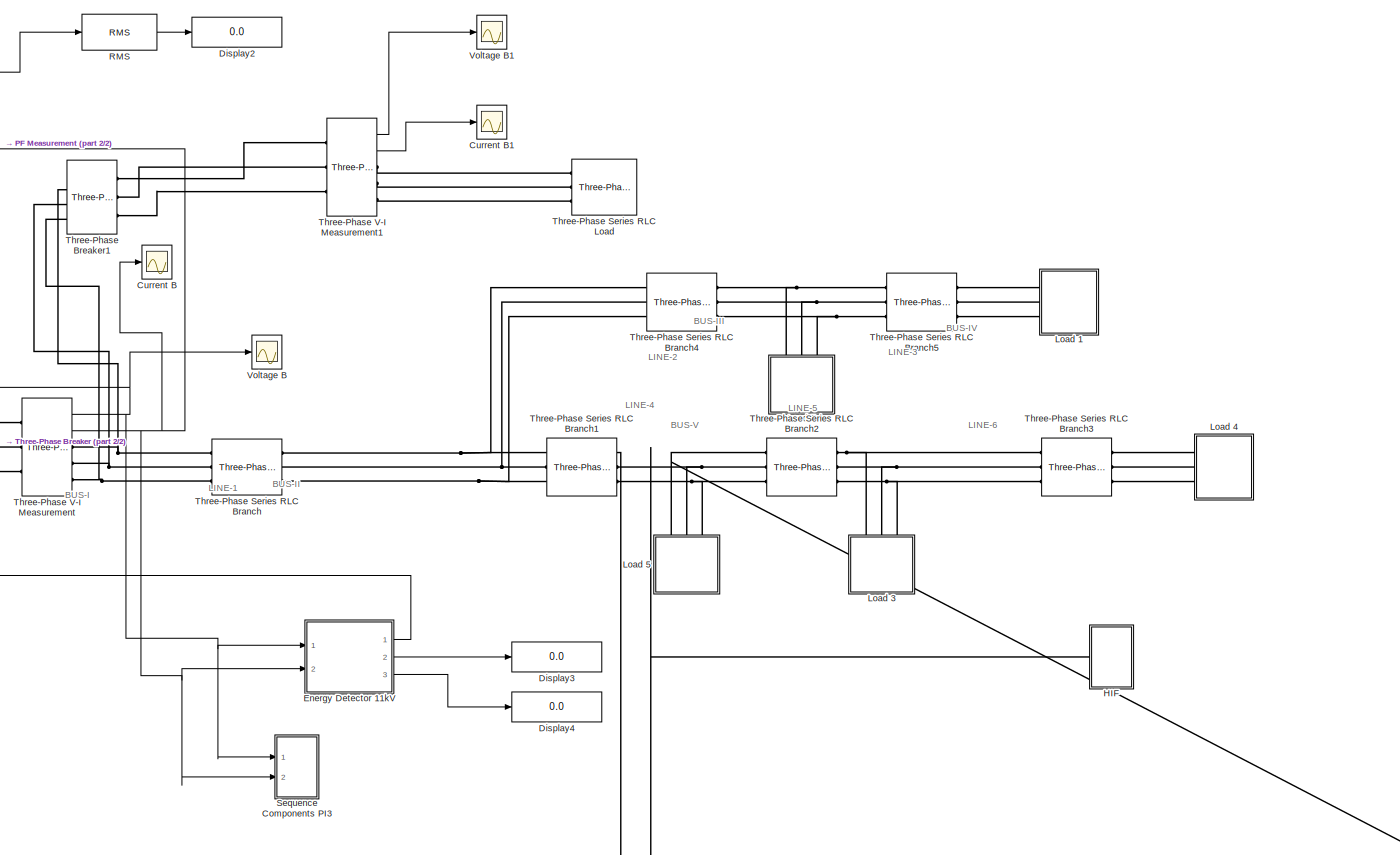
[diagram: root canvas - part 1/2, center side, full height]
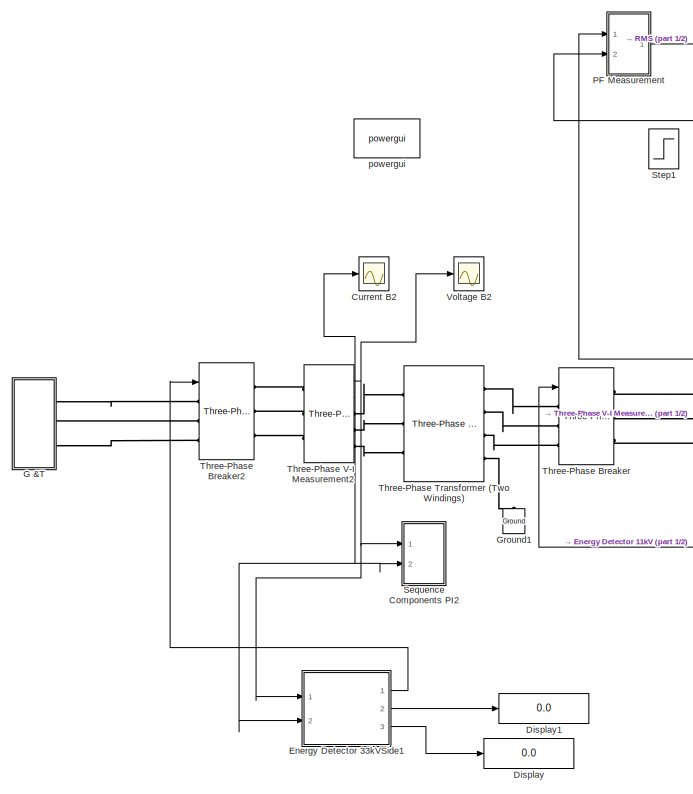
[diagram: root canvas - part 2/2, left side, full height]
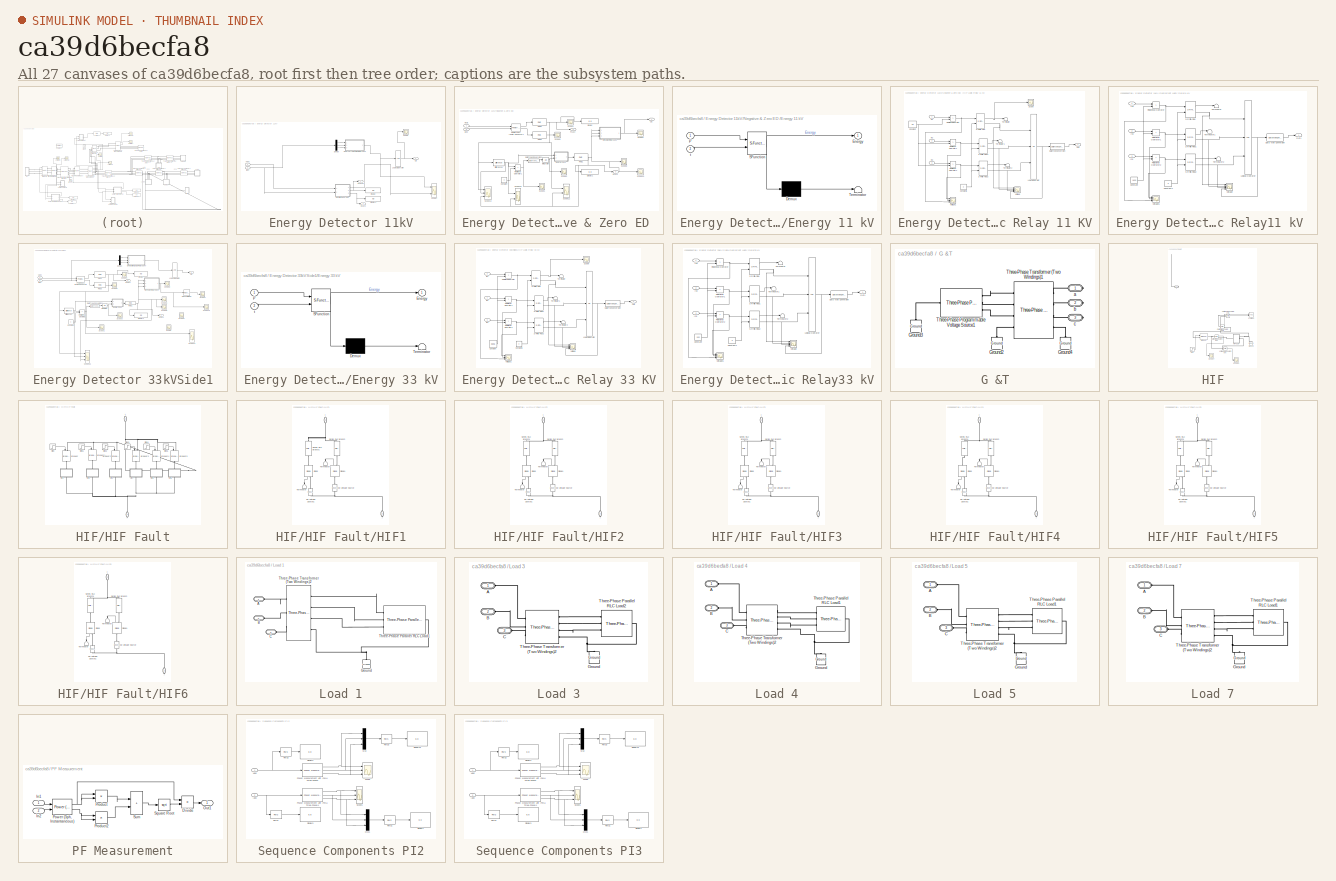
[diagram: thumbnail index - all 27 canvases of the model, root first then tree order]
MODEL slx_ca39d6becfa8
KIND model
CONFIG AbsTol = auto
CONFIG EnableMultiTasking = on
CONFIG FixedStep = auto
CONFIG MaxStep = auto
CONFIG MinStep = auto
CONFIG RelTol = 1e-3
CONFIG SampleTimeConstraint = Unconstrained
CONFIG SolverName = ode45
CONFIG StartTime = 0.0
CONFIG StopTime = 1
BLOCK [Scope] Current B
  Floating = off
  NumInputPorts = 1
  Ports = [1]
  ScopeSpecificationString = Simulink.scopes.TimeScopeBlockCfg('CurrentConfiguration', extmgr.ConfigurationSet(extmgr.Configuration('Core','General UI',true,'FigureColor',[1 1 1]),extmgr.Configuration('Core','Source UI',true),extmgr.Configuration('Sources','WiredSimulink',true,'DataLoggingVariableName','ScopeData5','DataLoggingLimitDataPoints',true,'DataLoggingSaveFormat','Array','DataLoggingDecimation','1','DataLoggingDecima...<+2970ch>
BLOCK [Scope] Current B1
  Floating = off
  NumInputPorts = 1
  Ports = [1]
  ScopeSpecificationString = Simulink.scopes.TimeScopeBlockCfg('CurrentConfiguration', extmgr.ConfigurationSet(extmgr.Configuration('Core','General UI',true,'FigureColor',[1 1 1]),extmgr.Configuration('Core','Source UI',true),extmgr.Configuration('Sources','WiredSimulink',true,'DataLoggingVariableName','ScopeData1','DataLoggingLimitDataPoints',true,'DataLoggingSaveFormat','Array','DataLoggingDecimation','1','DataLoggingDecima...<+3615ch>
BLOCK [Scope] Current B2
  Floating = off
  NumInputPorts = 1
  Ports = [1]
  ScopeSpecificationString = Simulink.scopes.TimeScopeBlockCfg('CurrentConfiguration', extmgr.ConfigurationSet(extmgr.Configuration('Core','General UI',true,'FigureColor',[1 1 1]),extmgr.Configuration('Core','Source UI',true),extmgr.Configuration('Sources','WiredSimulink',true,'DataLoggingVariableName','ScopeData1','DataLoggingLimitDataPoints',true,'DataLoggingSaveFormat','Array','DataLoggingDecimation','1','DataLoggingDecima...<+2971ch>
BLOCK [Display] Display
  Decimation = 1
  Ports = [1]
BLOCK [Display] Display1
  Decimation = 1
  Ports = [1]
BLOCK [Display] Display2
  Decimation = 1
  Ports = [1]
BLOCK [Display] Display3
  Decimation = 1
  Ports = [1]
BLOCK [Display] Display4
  Decimation = 1
  Ports = [1]
BLOCK [SubSystem] Energy Detector 11kV
  Ports = [2, 3]
  RequestExecContextInheritance = off
BLOCK [Outport] Energy Detector 11kV/C//S
  VectorParamsAs1DForOutWhenUnconnected = off
BLOCK [Demux] Energy Detector 11kV/Demux
  Outputs = 3
  Ports = [1, 3]
BLOCK [Display] Energy Detector 11kV/Display
  Decimation = 1
  Ports = [1]
BLOCK [Display] Energy Detector 11kV/Display1
  Decimation = 1
  Ports = [1]
BLOCK [Outport] Energy Detector 11kV/E 11kV
  Port = 3
  VectorParamsAs1DForOutWhenUnconnected = off
BLOCK [Inport] Energy Detector 11kV/Iabc
  Port = 2
BLOCK [Logic] Energy Detector 11kV/Logical Operator
  AllPortsSameDT = off
  Inputs = 1
  Ports = [1, 1]
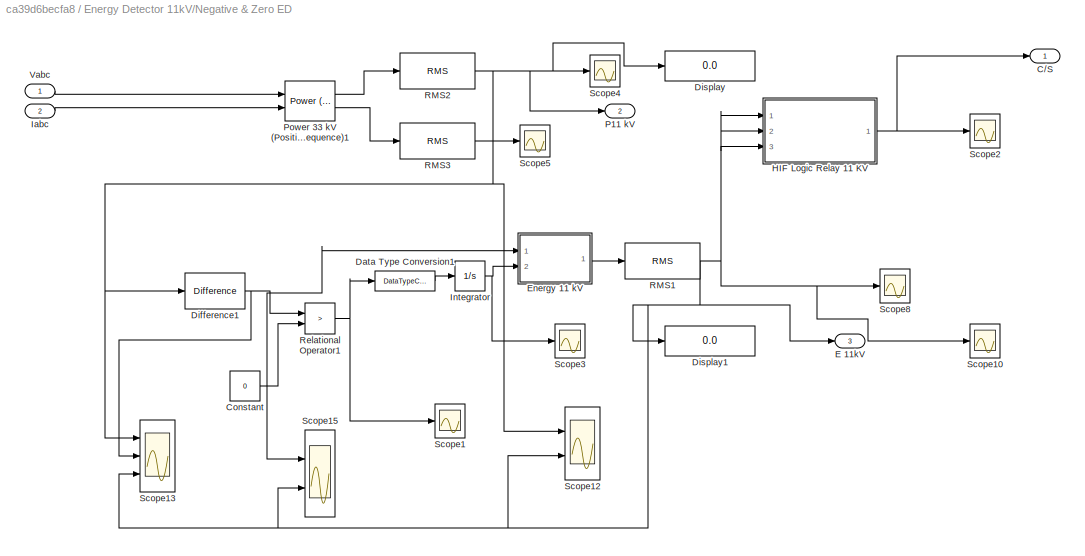
BLOCK [SubSystem] Energy Detector 11kV/Negative & Zero ED 
  Ports = [2, 3]
  RequestExecContextInheritance = off
BLOCK [Outport] Energy Detector 11kV/Negative & Zero ED /C//S
  VectorParamsAs1DForOutWhenUnconnected = off
BLOCK [Constant] Energy Detector 11kV/Negative & Zero ED /Constant
  Value = 0
BLOCK [DataTypeConversion] Energy Detector 11kV/Negative & Zero ED /Data Type Conversion1
  RndMeth = Floor
  SaturateOnIntegerOverflow = off
BLOCK [Reference] Energy Detector 11kV/Negative & Zero ED /Difference1  REF=simulink/Discrete/Difference
  Ports = [1, 1]
  SourceBlock = simulink/Discrete/Difference
  SourceProductBaseCode = SL
  SourceType = Difference
BLOCK [Display] Energy Detector 11kV/Negative & Zero ED /Display
  Decimation = 1
  Ports = [1]
BLOCK [Display] Energy Detector 11kV/Negative & Zero ED /Display1
  Decimation = 1
  Ports = [1]
BLOCK [Outport] Energy Detector 11kV/Negative & Zero ED /E 11kV
  Port = 3
  VectorParamsAs1DForOutWhenUnconnected = off
BLOCK [SubSystem] Energy Detector 11kV/Negative & Zero ED /Energy 11 kV
  ErrorFcn = Stateflow.Translate.translate
  PermitHierarchicalResolution = ExplicitOnly
  Ports = [2, 1]
  RequestExecContextInheritance = off
  SFBlockType = MATLAB Function
  TreatAsAtomicUnit = on
BLOCK [Demux] Energy Detector 11kV/Negative & Zero ED /Energy 11 kV/ Demux 
  Outputs = 1
  Ports = [1, 1]
BLOCK [S-Function] Energy Detector 11kV/Negative & Zero ED /Energy 11 kV/ SFunction 
  EnableBusSupport = on
  FunctionName = sf_sfun
  PortCounts = [2 2]
  Ports = [2, 2]
  SFcnIsStateOwnerBlock = off
  SFunctionDeploymentMode = off
  Tag = Stateflow S-Function 20
BLOCK [Terminator] Energy Detector 11kV/Negative & Zero ED /Energy 11 kV/ Terminator 
BLOCK [Outport] Energy Detector 11kV/Negative & Zero ED /Energy 11 kV/Energy
  VectorParamsAs1DForOutWhenUnconnected = off
BLOCK [Inport] Energy Detector 11kV/Negative & Zero ED /Energy 11 kV/P
BLOCK [Inport] Energy Detector 11kV/Negative & Zero ED /Energy 11 kV/t
  Port = 2
BLOCK [SubSystem] Energy Detector 11kV/Negative & Zero ED /HIF Logic Relay 11 KV
  Ports = [3, 1]
  RequestExecContextInheritance = off
  TreatAsAtomicUnit = on
BLOCK [Constant] Energy Detector 11kV/Negative & Zero ED /HIF Logic Relay 11 KV/Constant
  LockScale = on
  OutDataTypeStr = Inherit: Inherit via back propagation
  Value = 0.1
  VectorParams1D = off
BLOCK [Constant] Energy Detector 11kV/Negative & Zero ED /HIF Logic Relay 11 KV/Constant1
  LockScale = on
  OutDataTypeStr = Inherit: Inherit via back propagation
  Value = 0
  VectorParams1D = off
BLOCK [DataTypeConversion] Energy Detector 11kV/Negative & Zero ED /HIF Logic Relay 11 KV/Data Type Conversion
  RndMeth = Floor
  SaturateOnIntegerOverflow = off
BLOCK [Inport] Energy Detector 11kV/Negative & Zero ED /HIF Logic Relay 11 KV/In1
BLOCK [Inport] Energy Detector 11kV/Negative & Zero ED /HIF Logic Relay 11 KV/In2
  Port = 2
BLOCK [Inport] Energy Detector 11kV/Negative & Zero ED /HIF Logic Relay 11 KV/In3
  Port = 3
BLOCK [Logic] Energy Detector 11kV/Negative & Zero ED /HIF Logic Relay 11 KV/Logical Operator
  AllPortsSameDT = off
  Inputs = 3
  Operator = OR
  Ports = [3, 1]
BLOCK [Outport] Energy Detector 11kV/Negative & Zero ED /HIF Logic Relay 11 KV/Out1
  VectorParamsAs1DForOutWhenUnconnected = off
BLOCK [RelationalOperator] Energy Detector 11kV/Negative & Zero ED /HIF Logic Relay 11 KV/Relational Operator
  InputSameDT = off
  Operator = >
  Ports = [2, 1]
BLOCK [RelationalOperator] Energy Detector 11kV/Negative & Zero ED /HIF Logic Relay 11 KV/Relational Operator1
  InputSameDT = off
  Operator = >
  Ports = [2, 1]
BLOCK [RelationalOperator] Energy Detector 11kV/Negative & Zero ED /HIF Logic Relay 11 KV/Relational Operator2
  InputSameDT = off
  Operator = >
  Ports = [2, 1]
BLOCK [Reference] Energy Detector 11kV/Negative & Zero ED /HIF Logic Relay 11 KV/S-R Flip-Flop  REF=simulink_extras/Flip Flops/S-R
Flip-Flop
  Ports = [2, 2]
  SourceBlock = simulink_extras/Flip Flops/S-R\nFlip-Flop
  SourceProductBaseCode = SL
  SourceType = SRFlipFlop
BLOCK [Reference] Energy Detector 11kV/Negative & Zero ED /HIF Logic Relay 11 KV/S-R Flip-Flop1  REF=simulink_extras/Flip Flops/S-R
Flip-Flop
  Ports = [2, 2]
  SourceBlock = simulink_extras/Flip Flops/S-R\nFlip-Flop
  SourceProductBaseCode = SL
  SourceType = SRFlipFlop
BLOCK [Reference] Energy Detector 11kV/Negative & Zero ED /HIF Logic Relay 11 KV/S-R Flip-Flop2  REF=simulink_extras/Flip Flops/S-R
Flip-Flop
  Ports = [2, 2]
  SourceBlock = simulink_extras/Flip Flops/S-R\nFlip-Flop
  SourceProductBaseCode = SL
  SourceType = SRFlipFlop
BLOCK [Scope] Energy Detector 11kV/Negative & Zero ED /HIF Logic Relay 11 KV/Scope
  Floating = off
  NumInputPorts = 1
  Ports = [1]
  ScopeSpecificationString = Simulink.scopes.TimeScopeBlockCfg('CurrentConfiguration', extmgr.ConfigurationSet(extmgr.Configuration('Core','General UI',true),extmgr.Configuration('Core','Source UI',true),extmgr.Configuration('Sources','WiredSimulink',true,'DataLoggingVariableName','ScopeData1'),extmgr.Configuration('Visuals','Time Domain',true,'SerializedDisplays',{struct('MinYLimReal','-0.125','MaxYLimReal','1.125','YLabelRe...<+1387ch>
BLOCK [Terminator] Energy Detector 11kV/Negative & Zero ED /HIF Logic Relay 11 KV/Terminator
BLOCK [Terminator] Energy Detector 11kV/Negative & Zero ED /HIF Logic Relay 11 KV/Terminator1
BLOCK [Terminator] Energy Detector 11kV/Negative & Zero ED /HIF Logic Relay 11 KV/Terminator2
BLOCK [Scope] Energy Detector 11kV/Negative & Zero ED /HIF Logic Relay 11 KV/Voltage
  Floating = off
  NumInputPorts = 4
  Ports = [4]
  ScopeSpecificationString = Simulink.scopes.TimeScopeBlockCfg('CurrentConfiguration', extmgr.ConfigurationSet(extmgr.Configuration('Core','General UI',true,'FigureColor',[1 1 1]),extmgr.Configuration('Core','Source UI',true),extmgr.Configuration('Sources','WiredSimulink',true,'DataLoggingVariableName','ScopeData5','DataLoggingLimitDataPoints',true,'DataLoggingSaveFormat','Array','DataLoggingDecimation','1','DataLoggingDecima...<+6630ch>
BLOCK [Scope] Energy Detector 11kV/Negative & Zero ED /HIF Logic Relay 11 KV/Voltage1
  Floating = off
  NumInputPorts = 3
  Ports = [3]
  ScopeSpecificationString = Simulink.scopes.TimeScopeBlockCfg('CurrentConfiguration', extmgr.ConfigurationSet(extmgr.Configuration('Core','General UI',true,'FigureColor',[1 1 1]),extmgr.Configuration('Core','Source UI',true),extmgr.Configuration('Sources','WiredSimulink',true,'DataLoggingVariableName','ScopeData6','DataLoggingLimitDataPoints',true,'DataLoggingSaveFormat','Array','DataLoggingDecimation','1','DataLoggingDecima...<+5372ch>
BLOCK [Inport] Energy Detector 11kV/Negative & Zero ED /Iabc
  Port = 2
BLOCK [Integrator] Energy Detector 11kV/Negative & Zero ED /Integrator
  Ports = [1, 1]
BLOCK [Outport] Energy Detector 11kV/Negative & Zero ED /P11 kV
  Port = 2
  VectorParamsAs1DForOutWhenUnconnected = off
BLOCK [Reference] Energy Detector 11kV/Negative & Zero ED /Power 33 kV (Positive-Sequence)1  REF=spsPowerPositiveSequenceLib/Power
(Positive-Sequence)
  Ports = [2, 2]
  SourceBlock = spsPowerPositiveSequenceLib/Power\n(Positive-Sequence)
  SourceProductBaseCode = PS
  SourceType = Power (Positive-Sequence)
BLOCK [Reference] Energy Detector 11kV/Negative & Zero ED /RMS1  REF=dspstat3/RMS
  Ports = [1, 1]
  SourceBlock = dspstat3/RMS
  SourceProductBaseCode = DS
  SourceType = RMS
  UserDataPersistent = on
BLOCK [Reference] Energy Detector 11kV/Negative & Zero ED /RMS2  REF=dspstat3/RMS
  Ports = [1, 1]
  SourceBlock = dspstat3/RMS
  SourceProductBaseCode = DS
  SourceType = RMS
  UserDataPersistent = on
BLOCK [Reference] Energy Detector 11kV/Negative & Zero ED /RMS3  REF=dspstat3/RMS
  Ports = [1, 1]
  SourceBlock = dspstat3/RMS
  SourceProductBaseCode = DS
  SourceType = RMS
  UserDataPersistent = on
BLOCK [RelationalOperator] Energy Detector 11kV/Negative & Zero ED /Relational Operator1
  InputSameDT = off
  Operator = >
  Ports = [2, 1]
BLOCK [Scope] Energy Detector 11kV/Negative & Zero ED /Scope1
  Floating = off
  NumInputPorts = 1
  Ports = [1]
  ScopeSpecificationString = Simulink.scopes.TimeScopeBlockCfg('CurrentConfiguration', extmgr.ConfigurationSet(extmgr.Configuration('Core','General UI',true,'FigureColor',[1 1 1]),extmgr.Configuration('Core','Source UI',true),extmgr.Configuration('Sources','WiredSimulink',true,'DataLoggingVariableName','ScopeData1','DataLoggingLimitDataPoints',true,'DataLoggingSaveFormat','Array','DataLoggingDecimation','1','DataLoggingDecima...<+2848ch>
BLOCK [Scope] Energy Detector 11kV/Negative & Zero ED /Scope10
  Floating = off
  NumInputPorts = 1
  Ports = [1]
  ScopeSpecificationString = Simulink.scopes.TimeScopeBlockCfg('CurrentConfiguration', extmgr.ConfigurationSet(extmgr.Configuration('Core','General UI',true,'FigureColor',[1 1 1]),extmgr.Configuration('Core','Source UI',true),extmgr.Configuration('Sources','WiredSimulink',true,'DataLoggingVariableName','ScopeData1','DataLoggingLimitDataPoints',true,'DataLoggingSaveFormat','Array','DataLoggingDecimation','1','DataLoggingDecima...<+2862ch>
BLOCK [Scope] Energy Detector 11kV/Negative & Zero ED /Scope12
  Floating = off
  NumInputPorts = 2
  Ports = [2]
  ScopeSpecificationString = Simulink.scopes.TimeScopeBlockCfg('CurrentConfiguration', extmgr.ConfigurationSet(extmgr.Configuration('Core','General UI',true,'FigureColor',[1 1 1]),extmgr.Configuration('Core','Source UI',true),extmgr.Configuration('Sources','WiredSimulink',true,'DataLoggingVariableName','ScopeData1','DataLoggingLimitDataPoints',true,'DataLoggingSaveFormat','Array','DataLoggingDecimation','1','DataLoggingDecima...<+4046ch>
BLOCK [Scope] Energy Detector 11kV/Negative & Zero ED /Scope13
  Floating = off
  NumInputPorts = 3
  Ports = [3]
  ScopeSpecificationString = Simulink.scopes.TimeScopeBlockCfg('CurrentConfiguration', extmgr.ConfigurationSet(extmgr.Configuration('Core','General UI',true,'FigureColor',[1 1 1]),extmgr.Configuration('Core','Source UI',true),extmgr.Configuration('Sources','WiredSimulink',true,'DataLoggingVariableName','ScopeData1','DataLoggingLimitDataPoints',true,'DataLoggingSaveFormat','Array','DataLoggingDecimation','1','DataLoggingDecima...<+5327ch>
BLOCK [Scope] Energy Detector 11kV/Negative & Zero ED /Scope15
  Floating = off
  NumInputPorts = 2
  Ports = [2]
  ScopeSpecificationString = Simulink.scopes.TimeScopeBlockCfg('CurrentConfiguration', extmgr.ConfigurationSet(extmgr.Configuration('Core','General UI',true,'FigureColor',[1 1 1]),extmgr.Configuration('Core','Source UI',true),extmgr.Configuration('Sources','WiredSimulink',true,'DataLoggingVariableName','ScopeData2','DataLoggingLimitDataPoints',true,'DataLoggingSaveFormat','Array','DataLoggingDecimation','1','DataLoggingDecima...<+5320ch>
BLOCK [Scope] Energy Detector 11kV/Negative & Zero ED /Scope2
  Floating = off
  NumInputPorts = 1
  Ports = [1]
  ScopeSpecificationString = Simulink.scopes.TimeScopeBlockCfg('CurrentConfiguration', extmgr.ConfigurationSet(extmgr.Configuration('Core','General UI',true,'FigureColor',[1 1 1]),extmgr.Configuration('Core','Source UI',true),extmgr.Configuration('Sources','WiredSimulink',true,'DataLoggingVariableName','ScopeData1','DataLoggingLimitDataPoints',true,'DataLoggingSaveFormat','Array','DataLoggingDecimation','1','DataLoggingDecima...<+2849ch>
BLOCK [Scope] Energy Detector 11kV/Negative & Zero ED /Scope3
  Floating = off
  NumInputPorts = 1
  Ports = [1]
  ScopeSpecificationString = Simulink.scopes.TimeScopeBlockCfg('CurrentConfiguration', extmgr.ConfigurationSet(extmgr.Configuration('Core','General UI',true,'FigureColor',[1 1 1]),extmgr.Configuration('Core','Source UI',true),extmgr.Configuration('Sources','WiredSimulink',true,'DataLoggingVariableName','ScopeData3','DataLoggingLimitDataPoints',true,'DataLoggingSaveFormat','Array','DataLoggingDecimation','1','DataLoggingDecima...<+2872ch>
BLOCK [Scope] Energy Detector 11kV/Negative & Zero ED /Scope4
  Floating = off
  NumInputPorts = 1
  Ports = [1]
  ScopeSpecificationString = Simulink.scopes.TimeScopeBlockCfg('CurrentConfiguration', extmgr.ConfigurationSet(extmgr.Configuration('Core','General UI',true),extmgr.Configuration('Core','Source UI',true),extmgr.Configuration('Sources','WiredSimulink',true,'DataLoggingVariableName','ScopeData3'),extmgr.Configuration('Visuals','Time Domain',true,'SerializedDisplays',{struct('MinYLimReal','-83824.7748','MaxYLimReal','754422.9732...<+1453ch>
BLOCK [Scope] Energy Detector 11kV/Negative & Zero ED /Scope5
  Floating = off
  NumInputPorts = 1
  Ports = [1]
  ScopeSpecificationString = Simulink.scopes.TimeScopeBlockCfg('CurrentConfiguration', extmgr.ConfigurationSet(extmgr.Configuration('Core','General UI',true),extmgr.Configuration('Core','Source UI',true),extmgr.Configuration('Sources','WiredSimulink',true,'DataLoggingVariableName','ScopeData5'),extmgr.Configuration('Visuals','Time Domain',true,'SerializedDisplays',{struct('MinYLimReal','-59085.51882','MaxYLimReal','531769.669...<+1452ch>
BLOCK [Scope] Energy Detector 11kV/Negative & Zero ED /Scope8
  Floating = off
  NumInputPorts = 1
  Ports = [1]
  ScopeSpecificationString = Simulink.scopes.TimeScopeBlockCfg('CurrentConfiguration', extmgr.ConfigurationSet(extmgr.Configuration('Core','General UI',true,'FigureColor',[1 1 1]),extmgr.Configuration('Core','Source UI',true),extmgr.Configuration('Sources','WiredSimulink',true,'DataLoggingVariableName','ScopeData1','DataLoggingLimitDataPoints',true,'DataLoggingSaveFormat','Array','DataLoggingDecimation','1','DataLoggingDecima...<+2844ch>
BLOCK [Inport] Energy Detector 11kV/Negative & Zero ED /Vabc
  NameLocation = top
BLOCK [SubSystem] Energy Detector 11kV/Overcurrent Logic Relay11 kV 
  Ports = [3, 1]
  RequestExecContextInheritance = off
  TreatAsAtomicUnit = on
BLOCK [Constant] Energy Detector 11kV/Overcurrent Logic Relay11 kV /Constant
  LockScale = on
  OutDataTypeStr = Inherit: Inherit via back propagation
  Value = 1800
  VectorParams1D = off
BLOCK [Constant] Energy Detector 11kV/Overcurrent Logic Relay11 kV /Constant1
  LockScale = on
  OutDataTypeStr = Inherit: Inherit via back propagation
  Value = 0
  VectorParams1D = off
BLOCK [DataTypeConversion] Energy Detector 11kV/Overcurrent Logic Relay11 kV /Data Type Conversion
  RndMeth = Floor
  SaturateOnIntegerOverflow = off
BLOCK [Inport] Energy Detector 11kV/Overcurrent Logic Relay11 kV /In1
BLOCK [Inport] Energy Detector 11kV/Overcurrent Logic Relay11 kV /In2
  Port = 2
BLOCK [Inport] Energy Detector 11kV/Overcurrent Logic Relay11 kV /In3
  Port = 3
BLOCK [Logic] Energy Detector 11kV/Overcurrent Logic Relay11 kV /Logical Operator
  AllPortsSameDT = off
  Inputs = 3
  Ports = [3, 1]
BLOCK [Outport] Energy Detector 11kV/Overcurrent Logic Relay11 kV /Out1
  VectorParamsAs1DForOutWhenUnconnected = off
BLOCK [RelationalOperator] Energy Detector 11kV/Overcurrent Logic Relay11 kV /Relational Operator
  InputSameDT = off
  Operator = >
  Ports = [2, 1]
BLOCK [RelationalOperator] Energy Detector 11kV/Overcurrent Logic Relay11 kV /Relational Operator1
  InputSameDT = off
  Operator = >
  Ports = [2, 1]
BLOCK [RelationalOperator] Energy Detector 11kV/Overcurrent Logic Relay11 kV /Relational Operator2
  InputSameDT = off
  Operator = >
  Ports = [2, 1]
BLOCK [Reference] Energy Detector 11kV/Overcurrent Logic Relay11 kV /S-R Flip-Flop  REF=simulink_extras/Flip Flops/S-R
Flip-Flop
  Ports = [2, 2]
  SourceBlock = simulink_extras/Flip Flops/S-R\nFlip-Flop
  SourceProductBaseCode = SL
  SourceType = SRFlipFlop
BLOCK [Reference] Energy Detector 11kV/Overcurrent Logic Relay11 kV /S-R Flip-Flop1  REF=simulink_extras/Flip Flops/S-R
Flip-Flop
  Ports = [2, 2]
  SourceBlock = simulink_extras/Flip Flops/S-R\nFlip-Flop
  SourceProductBaseCode = SL
  SourceType = SRFlipFlop
BLOCK [Reference] Energy Detector 11kV/Overcurrent Logic Relay11 kV /S-R Flip-Flop2  REF=simulink_extras/Flip Flops/S-R
Flip-Flop
  Ports = [2, 2]
  SourceBlock = simulink_extras/Flip Flops/S-R\nFlip-Flop
  SourceProductBaseCode = SL
  SourceType = SRFlipFlop
BLOCK [Terminator] Energy Detector 11kV/Overcurrent Logic Relay11 kV /Terminator
BLOCK [Terminator] Energy Detector 11kV/Overcurrent Logic Relay11 kV /Terminator1
BLOCK [Terminator] Energy Detector 11kV/Overcurrent Logic Relay11 kV /Terminator2
BLOCK [Scope] Energy Detector 11kV/Overcurrent Logic Relay11 kV /Voltage
  Floating = off
  NumInputPorts = 4
  Ports = [4]
  ScopeSpecificationString = C++SS(StrPVP('Location','[5, 48, 1029, 727]'),StrPVP('Open','off'),MxPVP('AxesTitles',54,'struct(''axes1'',''%<SignalLabel>'',''axes2'',''%<SignalLabel>'',''axes3'',''%<SignalLabel>'',''axes4'',''%<SignalLabel>'')'),MxPVP('ScopeGraphics',57,'struct(''FigureColor'',''[1 1 1]'',''AxesColor'',''[1 1 1]'',''AxesTickColor'',''[0 0 0]'',''LineColors'',''[0 0 0;1 0 1;0 1 1;1 0 0;0 1 0;0 0 1]'',''LineStyl...<+427ch>
BLOCK [Scope] Energy Detector 11kV/Overcurrent Logic Relay11 kV /Voltage1
  Floating = off
  NumInputPorts = 3
  Ports = [3]
  ScopeSpecificationString = C++SS(StrPVP('Location','[5, 48, 1029, 727]'),StrPVP('Open','off'),MxPVP('AxesTitles',54,'struct(''axes1'',''%<SignalLabel>'',''axes2'',''%<SignalLabel>'',''axes3'',''%<SignalLabel>'')'),MxPVP('ScopeGraphics',57,'struct(''FigureColor'',''[1 1 1]'',''AxesColor'',''[1 1 1]'',''AxesTickColor'',''[0 0 0]'',''LineColors'',''[0 0 0;1 0 1;0 1 1;1 0 0;0 1 0;0 0 1]'',''LineStyles'',''-|-|-|-|-|-'',''LineWi...<+372ch>
BLOCK [Outport] Energy Detector 11kV/P11kV1
  Port = 2
  VectorParamsAs1DForOutWhenUnconnected = off
BLOCK [Scope] Energy Detector 11kV/Scope
  Floating = off
  NumInputPorts = 1
  Ports = [1]
  ScopeSpecificationString = Simulink.scopes.TimeScopeBlockCfg('CurrentConfiguration', extmgr.ConfigurationSet(extmgr.Configuration('Core','General UI',true),extmgr.Configuration('Core','Source UI',true),extmgr.Configuration('Sources','WiredSimulink',true,'DataLoggingVariableName','ScopeData52'),extmgr.Configuration('Visuals','Time Domain',true,'SerializedDisplays',{struct('MinYLimReal','0.9','MaxYLimReal','1.1','YLabelReal',...<+1367ch>
BLOCK [Scope] Energy Detector 11kV/Scope7
  Floating = off
  NumInputPorts = 3
  Ports = [3]
  ScopeSpecificationString = Simulink.scopes.TimeScopeBlockCfg('CurrentConfiguration', extmgr.ConfigurationSet(extmgr.Configuration('Core','General UI',true,'FigureColor',[1 1 1]),extmgr.Configuration('Core','Source UI',true),extmgr.Configuration('Sources','WiredSimulink',true,'DataLoggingVariableName','ScopeData1','DataLoggingLimitDataPoints',true,'DataLoggingSaveFormat','Array','DataLoggingDecimation','1','DataLoggingDecima...<+5328ch>
BLOCK [Inport] Energy Detector 11kV/Vabc
  NameLocation = top
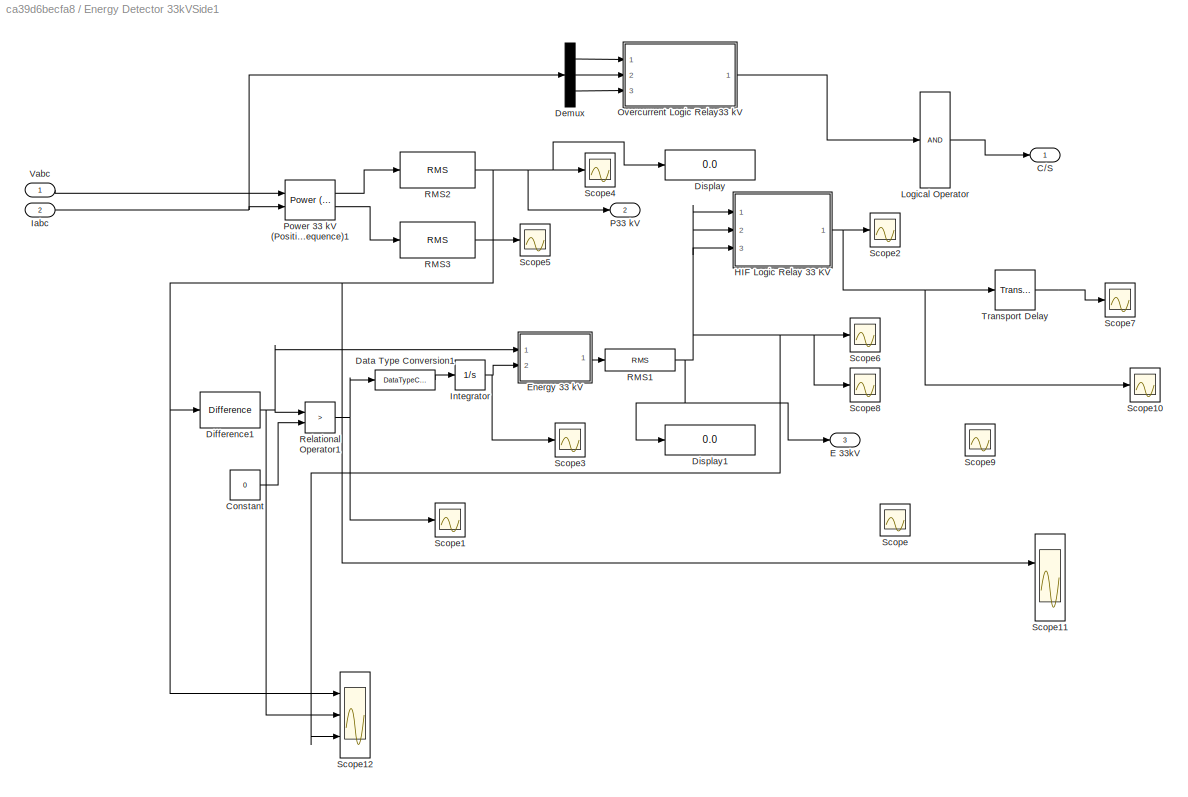
BLOCK [SubSystem] Energy Detector 33kVSide1
  Ports = [2, 3]
  RequestExecContextInheritance = off
BLOCK [Outport] Energy Detector 33kVSide1/C//S
  VectorParamsAs1DForOutWhenUnconnected = off
BLOCK [Constant] Energy Detector 33kVSide1/Constant
  Value = 0
BLOCK [DataTypeConversion] Energy Detector 33kVSide1/Data Type Conversion1
  RndMeth = Floor
  SaturateOnIntegerOverflow = off
BLOCK [Demux] Energy Detector 33kVSide1/Demux
  Outputs = 3
  Ports = [1, 3]
BLOCK [Reference] Energy Detector 33kVSide1/Difference1  REF=simulink/Discrete/Difference
  Ports = [1, 1]
  SourceBlock = simulink/Discrete/Difference
  SourceProductBaseCode = SL
  SourceType = Difference
BLOCK [Display] Energy Detector 33kVSide1/Display
  Decimation = 1
  Ports = [1]
BLOCK [Display] Energy Detector 33kVSide1/Display1
  Decimation = 1
  Ports = [1]
BLOCK [Outport] Energy Detector 33kVSide1/E 33kV
  Port = 3
  VectorParamsAs1DForOutWhenUnconnected = off
BLOCK [SubSystem] Energy Detector 33kVSide1/Energy 33 kV
  ErrorFcn = Stateflow.Translate.translate
  PermitHierarchicalResolution = ExplicitOnly
  Ports = [2, 1]
  RequestExecContextInheritance = off
  SFBlockType = MATLAB Function
  TreatAsAtomicUnit = on
BLOCK [Demux] Energy Detector 33kVSide1/Energy 33 kV/ Demux 
  Outputs = 1
  Ports = [1, 1]
BLOCK [S-Function] Energy Detector 33kVSide1/Energy 33 kV/ SFunction 
  EnableBusSupport = on
  FunctionName = sf_sfun
  PortCounts = [2 2]
  Ports = [2, 2]
  SFcnIsStateOwnerBlock = off
  SFunctionDeploymentMode = off
  Tag = Stateflow S-Function 1
BLOCK [Terminator] Energy Detector 33kVSide1/Energy 33 kV/ Terminator 
BLOCK [Outport] Energy Detector 33kVSide1/Energy 33 kV/Energy
  VectorParamsAs1DForOutWhenUnconnected = off
BLOCK [Inport] Energy Detector 33kVSide1/Energy 33 kV/P
BLOCK [Inport] Energy Detector 33kVSide1/Energy 33 kV/t
  Port = 2
BLOCK [SubSystem] Energy Detector 33kVSide1/HIF Logic Relay 33 KV
  Ports = [3, 1]
  RequestExecContextInheritance = off
  TreatAsAtomicUnit = on
BLOCK [Constant] Energy Detector 33kVSide1/HIF Logic Relay 33 KV/Constant
  LockScale = on
  OutDataTypeStr = Inherit: Inherit via back propagation
  Value = 0.005
  VectorParams1D = off
BLOCK [Constant] Energy Detector 33kVSide1/HIF Logic Relay 33 KV/Constant1
  LockScale = on
  OutDataTypeStr = Inherit: Inherit via back propagation
  Value = 0
  VectorParams1D = off
BLOCK [DataTypeConversion] Energy Detector 33kVSide1/HIF Logic Relay 33 KV/Data Type Conversion
  RndMeth = Floor
  SaturateOnIntegerOverflow = off
BLOCK [Inport] Energy Detector 33kVSide1/HIF Logic Relay 33 KV/In1
  Port = 2
BLOCK [Inport] Energy Detector 33kVSide1/HIF Logic Relay 33 KV/In2
BLOCK [Inport] Energy Detector 33kVSide1/HIF Logic Relay 33 KV/In3
  Port = 3
BLOCK [Logic] Energy Detector 33kVSide1/HIF Logic Relay 33 KV/Logical Operator
  AllPortsSameDT = off
  Inputs = 3
  Operator = OR
  Ports = [3, 1]
BLOCK [Outport] Energy Detector 33kVSide1/HIF Logic Relay 33 KV/Out1
  VectorParamsAs1DForOutWhenUnconnected = off
BLOCK [RelationalOperator] Energy Detector 33kVSide1/HIF Logic Relay 33 KV/Relational Operator
  InputSameDT = off
  Operator = >
  Ports = [2, 1]
BLOCK [RelationalOperator] Energy Detector 33kVSide1/HIF Logic Relay 33 KV/Relational Operator1
  InputSameDT = off
  Operator = >
  Ports = [2, 1]
BLOCK [RelationalOperator] Energy Detector 33kVSide1/HIF Logic Relay 33 KV/Relational Operator2
  InputSameDT = off
  Operator = >
  Ports = [2, 1]
BLOCK [Reference] Energy Detector 33kVSide1/HIF Logic Relay 33 KV/S-R Flip-Flop  REF=simulink_extras/Flip Flops/S-R
Flip-Flop
  Ports = [2, 2]
  SourceBlock = simulink_extras/Flip Flops/S-R\nFlip-Flop
  SourceProductBaseCode = SL
  SourceType = SRFlipFlop
BLOCK [Reference] Energy Detector 33kVSide1/HIF Logic Relay 33 KV/S-R Flip-Flop1  REF=simulink_extras/Flip Flops/S-R
Flip-Flop
  Ports = [2, 2]
  SourceBlock = simulink_extras/Flip Flops/S-R\nFlip-Flop
  SourceProductBaseCode = SL
  SourceType = SRFlipFlop
BLOCK [Reference] Energy Detector 33kVSide1/HIF Logic Relay 33 KV/S-R Flip-Flop2  REF=simulink_extras/Flip Flops/S-R
Flip-Flop
  Ports = [2, 2]
  SourceBlock = simulink_extras/Flip Flops/S-R\nFlip-Flop
  SourceProductBaseCode = SL
  SourceType = SRFlipFlop
BLOCK [Scope] Energy Detector 33kVSide1/HIF Logic Relay 33 KV/Scope
  Floating = off
  NumInputPorts = 1
  Ports = [1]
  ScopeSpecificationString = Simulink.scopes.TimeScopeBlockCfg('CurrentConfiguration', extmgr.ConfigurationSet(extmgr.Configuration('Core','General UI',true),extmgr.Configuration('Core','Source UI',true),extmgr.Configuration('Sources','WiredSimulink',true,'DataLoggingVariableName','ScopeData1'),extmgr.Configuration('Visuals','Time Domain',true,'SerializedDisplays',{struct('MinYLimReal','-0.125','MaxYLimReal','1.125','YLabelRe...<+1387ch>
BLOCK [Terminator] Energy Detector 33kVSide1/HIF Logic Relay 33 KV/Terminator
BLOCK [Terminator] Energy Detector 33kVSide1/HIF Logic Relay 33 KV/Terminator1
BLOCK [Terminator] Energy Detector 33kVSide1/HIF Logic Relay 33 KV/Terminator2
BLOCK [Scope] Energy Detector 33kVSide1/HIF Logic Relay 33 KV/Voltage
  Floating = off
  NumInputPorts = 4
  Ports = [4]
  ScopeSpecificationString = Simulink.scopes.TimeScopeBlockCfg('CurrentConfiguration', extmgr.ConfigurationSet(extmgr.Configuration('Core','General UI',true,'FigureColor',[1 1 1]),extmgr.Configuration('Core','Source UI',true),extmgr.Configuration('Sources','WiredSimulink',true,'DataLoggingVariableName','ScopeData5','DataLoggingLimitDataPoints',true,'DataLoggingSaveFormat','Array','DataLoggingDecimation','1','DataLoggingDecima...<+6630ch>
BLOCK [Scope] Energy Detector 33kVSide1/HIF Logic Relay 33 KV/Voltage1
  Floating = off
  NumInputPorts = 3
  Ports = [3]
  ScopeSpecificationString = Simulink.scopes.TimeScopeBlockCfg('CurrentConfiguration', extmgr.ConfigurationSet(extmgr.Configuration('Core','General UI',true,'FigureColor',[1 1 1]),extmgr.Configuration('Core','Source UI',true),extmgr.Configuration('Sources','WiredSimulink',true,'DataLoggingVariableName','ScopeData6','DataLoggingLimitDataPoints',true,'DataLoggingSaveFormat','Array','DataLoggingDecimation','1','DataLoggingDecima...<+5372ch>
BLOCK [Inport] Energy Detector 33kVSide1/Iabc
  Port = 2
BLOCK [Integrator] Energy Detector 33kVSide1/Integrator
  Ports = [1, 1]
BLOCK [Logic] Energy Detector 33kVSide1/Logical Operator
  AllPortsSameDT = off
  Inputs = 1
  Ports = [1, 1]
BLOCK [SubSystem] Energy Detector 33kVSide1/Overcurrent Logic Relay33 kV
  Ports = [3, 1]
  RequestExecContextInheritance = off
  TreatAsAtomicUnit = on
BLOCK [Constant] Energy Detector 33kVSide1/Overcurrent Logic Relay33 kV/Constant
  LockScale = on
  OutDataTypeStr = Inherit: Inherit via back propagation
  Value = 500
  VectorParams1D = off
BLOCK [Constant] Energy Detector 33kVSide1/Overcurrent Logic Relay33 kV/Constant1
  LockScale = on
  OutDataTypeStr = Inherit: Inherit via back propagation
  Value = 0
  VectorParams1D = off
BLOCK [DataTypeConversion] Energy Detector 33kVSide1/Overcurrent Logic Relay33 kV/Data Type Conversion
  RndMeth = Floor
  SaturateOnIntegerOverflow = off
BLOCK [Inport] Energy Detector 33kVSide1/Overcurrent Logic Relay33 kV/In1
BLOCK [Inport] Energy Detector 33kVSide1/Overcurrent Logic Relay33 kV/In2
  Port = 2
BLOCK [Inport] Energy Detector 33kVSide1/Overcurrent Logic Relay33 kV/In3
  Port = 3
BLOCK [Logic] Energy Detector 33kVSide1/Overcurrent Logic Relay33 kV/Logical Operator
  AllPortsSameDT = off
  Inputs = 3
  Ports = [3, 1]
BLOCK [Outport] Energy Detector 33kVSide1/Overcurrent Logic Relay33 kV/Out1
  VectorParamsAs1DForOutWhenUnconnected = off
BLOCK [RelationalOperator] Energy Detector 33kVSide1/Overcurrent Logic Relay33 kV/Relational Operator
  InputSameDT = off
  Operator = >
  Ports = [2, 1]
BLOCK [RelationalOperator] Energy Detector 33kVSide1/Overcurrent Logic Relay33 kV/Relational Operator1
  InputSameDT = off
  Operator = >
  Ports = [2, 1]
BLOCK [RelationalOperator] Energy Detector 33kVSide1/Overcurrent Logic Relay33 kV/Relational Operator2
  InputSameDT = off
  Operator = >
  Ports = [2, 1]
BLOCK [Reference] Energy Detector 33kVSide1/Overcurrent Logic Relay33 kV/S-R Flip-Flop  REF=simulink_extras/Flip Flops/S-R
Flip-Flop
  Ports = [2, 2]
  SourceBlock = simulink_extras/Flip Flops/S-R\nFlip-Flop
  SourceProductBaseCode = SL
  SourceType = SRFlipFlop
BLOCK [Reference] Energy Detector 33kVSide1/Overcurrent Logic Relay33 kV/S-R Flip-Flop1  REF=simulink_extras/Flip Flops/S-R
Flip-Flop
  Ports = [2, 2]
  SourceBlock = simulink_extras/Flip Flops/S-R\nFlip-Flop
  SourceProductBaseCode = SL
  SourceType = SRFlipFlop
BLOCK [Reference] Energy Detector 33kVSide1/Overcurrent Logic Relay33 kV/S-R Flip-Flop2  REF=simulink_extras/Flip Flops/S-R
Flip-Flop
  Ports = [2, 2]
  SourceBlock = simulink_extras/Flip Flops/S-R\nFlip-Flop
  SourceProductBaseCode = SL
  SourceType = SRFlipFlop
BLOCK [Terminator] Energy Detector 33kVSide1/Overcurrent Logic Relay33 kV/Terminator
BLOCK [Terminator] Energy Detector 33kVSide1/Overcurrent Logic Relay33 kV/Terminator1
BLOCK [Terminator] Energy Detector 33kVSide1/Overcurrent Logic Relay33 kV/Terminator2
BLOCK [Scope] Energy Detector 33kVSide1/Overcurrent Logic Relay33 kV/Voltage
  Floating = off
  NumInputPorts = 4
  Ports = [4]
  ScopeSpecificationString = C++SS(StrPVP('Location','[5, 48, 1029, 727]'),StrPVP('Open','off'),MxPVP('AxesTitles',54,'struct(''axes1'',''%<SignalLabel>'',''axes2'',''%<SignalLabel>'',''axes3'',''%<SignalLabel>'',''axes4'',''%<SignalLabel>'')'),MxPVP('ScopeGraphics',57,'struct(''FigureColor'',''[1 1 1]'',''AxesColor'',''[1 1 1]'',''AxesTickColor'',''[0 0 0]'',''LineColors'',''[0 0 0;1 0 1;0 1 1;1 0 0;0 1 0;0 0 1]'',''LineStyl...<+427ch>
BLOCK [Scope] Energy Detector 33kVSide1/Overcurrent Logic Relay33 kV/Voltage1
  Floating = off
  NumInputPorts = 3
  Ports = [3]
  ScopeSpecificationString = C++SS(StrPVP('Location','[5, 48, 1029, 727]'),StrPVP('Open','off'),MxPVP('AxesTitles',54,'struct(''axes1'',''%<SignalLabel>'',''axes2'',''%<SignalLabel>'',''axes3'',''%<SignalLabel>'')'),MxPVP('ScopeGraphics',57,'struct(''FigureColor'',''[1 1 1]'',''AxesColor'',''[1 1 1]'',''AxesTickColor'',''[0 0 0]'',''LineColors'',''[0 0 0;1 0 1;0 1 1;1 0 0;0 1 0;0 0 1]'',''LineStyles'',''-|-|-|-|-|-'',''LineWi...<+372ch>
BLOCK [Outport] Energy Detector 33kVSide1/P33 kV
  Port = 2
  VectorParamsAs1DForOutWhenUnconnected = off
BLOCK [Reference] Energy Detector 33kVSide1/Power 33 kV (Positive-Sequence)1  REF=spsPowerPositiveSequenceLib/Power
(Positive-Sequence)
  Ports = [2, 2]
  SourceBlock = spsPowerPositiveSequenceLib/Power\n(Positive-Sequence)
  SourceProductBaseCode = PS
  SourceType = Power (Positive-Sequence)
BLOCK [Reference] Energy Detector 33kVSide1/RMS1  REF=dspstat3/RMS
  Ports = [1, 1]
  SourceBlock = dspstat3/RMS
  SourceProductBaseCode = DS
  SourceType = RMS
  UserDataPersistent = on
BLOCK [Reference] Energy Detector 33kVSide1/RMS2  REF=dspstat3/RMS
  Ports = [1, 1]
  SourceBlock = dspstat3/RMS
  SourceProductBaseCode = DS
  SourceType = RMS
  UserDataPersistent = on
BLOCK [Reference] Energy Detector 33kVSide1/RMS3  REF=dspstat3/RMS
  Ports = [1, 1]
  SourceBlock = dspstat3/RMS
  SourceProductBaseCode = DS
  SourceType = RMS
  UserDataPersistent = on
BLOCK [RelationalOperator] Energy Detector 33kVSide1/Relational Operator1
  InputSameDT = off
  Operator = >
  Ports = [2, 1]
BLOCK [Scope] Energy Detector 33kVSide1/Scope
  Floating = off
  NumInputPorts = 1
  Ports = [1]
  ScopeSpecificationString = Simulink.scopes.TimeScopeBlockCfg('CurrentConfiguration', extmgr.ConfigurationSet(extmgr.Configuration('Core','General UI',true),extmgr.Configuration('Core','Source UI',true),extmgr.Configuration('Sources','WiredSimulink',true,'DataLoggingVariableName','ScopeData2'),extmgr.Configuration('Visuals','Time Domain',true,'SerializedDisplays',{struct('MinYLimReal','-2.32817','MaxYLimReal','2.52135','YLab...<+1447ch>
BLOCK [Scope] Energy Detector 33kVSide1/Scope1
  Floating = off
  NumInputPorts = 1
  Ports = [1]
  ScopeSpecificationString = Simulink.scopes.TimeScopeBlockCfg('CurrentConfiguration', extmgr.ConfigurationSet(extmgr.Configuration('Core','General UI',true,'FigureColor',[1 1 1]),extmgr.Configuration('Core','Source UI',true),extmgr.Configuration('Sources','WiredSimulink',true,'DataLoggingVariableName','ScopeData1','DataLoggingLimitDataPoints',true,'DataLoggingSaveFormat','Array','DataLoggingDecimation','1','DataLoggingDecima...<+2848ch>
BLOCK [Scope] Energy Detector 33kVSide1/Scope10
  Floating = off
  NumInputPorts = 1
  Ports = [1]
  ScopeSpecificationString = Simulink.scopes.TimeScopeBlockCfg('CurrentConfiguration', extmgr.ConfigurationSet(extmgr.Configuration('Core','General UI',true,'FigureColor',[1 1 1]),extmgr.Configuration('Core','Source UI',true),extmgr.Configuration('Sources','WiredSimulink',true,'DataLoggingVariableName','ScopeData2','DataLogging',true,'DataLoggingDecimateData',true),extmgr.Configuration('Visuals','Time Domain',true,'Serialized...<+1573ch>
BLOCK [Scope] Energy Detector 33kVSide1/Scope11
  Floating = off
  NumInputPorts = 2
  Ports = [2]
  ScopeSpecificationString = Simulink.scopes.TimeScopeBlockCfg('CurrentConfiguration', extmgr.ConfigurationSet(extmgr.Configuration('Core','General UI',true,'FigureColor',[1 1 1]),extmgr.Configuration('Core','Source UI',true),extmgr.Configuration('Sources','WiredSimulink',true,'DataLoggingVariableName','ScopeData1','DataLoggingLimitDataPoints',true,'DataLoggingSaveFormat','Array','DataLoggingDecimation','1','DataLoggingDecima...<+5318ch>
BLOCK [Scope] Energy Detector 33kVSide1/Scope12
  Floating = off
  NumInputPorts = 3
  Ports = [3]
  ScopeSpecificationString = Simulink.scopes.TimeScopeBlockCfg('CurrentConfiguration', extmgr.ConfigurationSet(extmgr.Configuration('Core','General UI',true,'FigureColor',[1 1 1]),extmgr.Configuration('Core','Source UI',true),extmgr.Configuration('Sources','WiredSimulink',true,'DataLoggingVariableName','ScopeData1','DataLoggingLimitDataPoints',true,'DataLoggingSaveFormat','Array','DataLoggingDecimation','1','DataLoggingDecima...<+5329ch>
BLOCK [Scope] Energy Detector 33kVSide1/Scope2
  Floating = off
  NumInputPorts = 1
  Ports = [1]
  ScopeSpecificationString = Simulink.scopes.TimeScopeBlockCfg('CurrentConfiguration', extmgr.ConfigurationSet(extmgr.Configuration('Core','General UI',true,'FigureColor',[1 1 1]),extmgr.Configuration('Core','Source UI',true),extmgr.Configuration('Sources','WiredSimulink',true,'DataLoggingVariableName','ScopeData1','DataLoggingLimitDataPoints',true,'DataLoggingSaveFormat','Array','DataLoggingDecimation','1','DataLoggingDecima...<+2844ch>
BLOCK [Scope] Energy Detector 33kVSide1/Scope3
  Floating = off
  NumInputPorts = 1
  Ports = [1]
  ScopeSpecificationString = Simulink.scopes.TimeScopeBlockCfg('CurrentConfiguration', extmgr.ConfigurationSet(extmgr.Configuration('Core','General UI',true,'FigureColor',[1 1 1]),extmgr.Configuration('Core','Source UI',true),extmgr.Configuration('Sources','WiredSimulink',true,'DataLoggingVariableName','ScopeData3','DataLoggingLimitDataPoints',true,'DataLoggingSaveFormat','Array','DataLoggingDecimation','1','DataLoggingDecima...<+2850ch>
BLOCK [Scope] Energy Detector 33kVSide1/Scope4
  Floating = off
  NumInputPorts = 1
  Ports = [1]
  ScopeSpecificationString = Simulink.scopes.TimeScopeBlockCfg('CurrentConfiguration', extmgr.ConfigurationSet(extmgr.Configuration('Core','General UI',true,'FigureColor',[1 1 1]),extmgr.Configuration('Core','Source UI',true),extmgr.Configuration('Sources','WiredSimulink',true,'DataLoggingVariableName','ScopeData2','DataLoggingLimitDataPoints',true,'DataLoggingSaveFormat','Array','DataLoggingDecimation','1','DataLoggingDecima...<+2877ch>
BLOCK [Scope] Energy Detector 33kVSide1/Scope5
  Floating = off
  NumInputPorts = 1
  Ports = [1]
  ScopeSpecificationString = Simulink.scopes.TimeScopeBlockCfg('CurrentConfiguration', extmgr.ConfigurationSet(extmgr.Configuration('Core','General UI',true),extmgr.Configuration('Core','Source UI',true),extmgr.Configuration('Sources','WiredSimulink',true,'DataLoggingVariableName','ScopeData5'),extmgr.Configuration('Visuals','Time Domain',true,'SerializedDisplays',{struct('MinYLimReal','-11435.17845','MaxYLimReal','102916.606...<+1452ch>
BLOCK [Scope] Energy Detector 33kVSide1/Scope6
  Floating = off
  NumInputPorts = 1
  Ports = [1]
  ScopeSpecificationString = Simulink.scopes.TimeScopeBlockCfg('CurrentConfiguration', extmgr.ConfigurationSet(extmgr.Configuration('Core','General UI',true,'FigureColor',[1 1 1]),extmgr.Configuration('Core','Source UI',true),extmgr.Configuration('Sources','WiredSimulink',true,'DataLoggingVariableName','ScopeData6','DataLoggingLimitDataPoints',true,'DataLoggingSaveFormat','Array','DataLoggingDecimation','1','DataLoggingDecima...<+2878ch>
BLOCK [Scope] Energy Detector 33kVSide1/Scope7
  Floating = off
  NumInputPorts = 1
  Ports = [1]
  ScopeSpecificationString = Simulink.scopes.TimeScopeBlockCfg('CurrentConfiguration', extmgr.ConfigurationSet(extmgr.Configuration('Core','General UI',true,'FigureColor',[1 1 1]),extmgr.Configuration('Core','Source UI',true),extmgr.Configuration('Sources','WiredSimulink',true,'DataLoggingVariableName','ScopeData4','DataLogging',true,'DataLoggingDecimateData',true),extmgr.Configuration('Visuals','Time Domain',true,'Serialized...<+1589ch>
BLOCK [Scope] Energy Detector 33kVSide1/Scope8
  Floating = off
  NumInputPorts = 1
  Ports = [1]
  ScopeSpecificationString = Simulink.scopes.TimeScopeBlockCfg('CurrentConfiguration', extmgr.ConfigurationSet(extmgr.Configuration('Core','General UI',true,'FigureColor',[1 1 1]),extmgr.Configuration('Core','Source UI',true),extmgr.Configuration('Sources','WiredSimulink',true,'DataLoggingVariableName','ScopeData1','DataLoggingLimitDataPoints',true,'DataLoggingSaveFormat','Array','DataLoggingDecimation','1','DataLoggingDecima...<+2876ch>
BLOCK [Scope] Energy Detector 33kVSide1/Scope9
  Floating = off
  NumInputPorts = 1
  Ports = [1]
  ScopeSpecificationString = Simulink.scopes.TimeScopeBlockCfg('CurrentConfiguration', extmgr.ConfigurationSet(extmgr.Configuration('Core','General UI',true),extmgr.Configuration('Core','Source UI',true),extmgr.Configuration('Sources','WiredSimulink',true,'DataLoggingVariableName','ScopeData1'),extmgr.Configuration('Visuals','Time Domain',true,'SerializedDisplays',{struct('MinYLimReal','-228.936','MaxYLimReal','2060.424','YLa...<+1442ch>
BLOCK [TransportDelay] Energy Detector 33kVSide1/Transport Delay
  DelayTime = 0.1
  InitialOutput = 1
  Ports = [1, 1]
BLOCK [Inport] Energy Detector 33kVSide1/Vabc
  NameLocation = top
BLOCK [SubSystem] G &T
  Ports = [0, 0, 0, 0, 0, 0, 3]
  RequestExecContextInheritance = off
BLOCK [Reference] G &T/Ground2  REF=spsGroundLib/Ground
  NameLocation = right
  Ports = [0, 0, 0, 0, 0, 1]
  SourceBlock = spsGroundLib/Ground
  SourceProductBaseCode = PS
  SourceType = Ground
BLOCK [Reference] G &T/Ground3  REF=spsGroundLib/Ground
  NameLocation = right
  Ports = [0, 0, 0, 0, 0, 1]
  SourceBlock = spsGroundLib/Ground
  SourceProductBaseCode = PS
  SourceType = Ground
BLOCK [Reference] G &T/Ground4  REF=spsGroundLib/Ground
  NameLocation = right
  Ports = [0, 0, 0, 0, 0, 1]
  SourceBlock = spsGroundLib/Ground
  SourceProductBaseCode = PS
  SourceType = Ground
BLOCK [Reference] G &T/Three-Phase Programmable Voltage Source1  REF=spsThreePhaseProgrammableVoltageSourceLib/Three-Phase
Programmable
Voltage Source
  Ports = [0, 0, 0, 0, 0, 1, 3]
  SourceBlock = spsThreePhaseProgrammableVoltageSourceLib/Three-Phase\nProgrammable\nVoltage Source
  SourceProductBaseCode = PS
  SourceType = Three-Phase Programmable Voltage Source
BLOCK [Reference] G &T/Three-Phase Transformer (Two Windings)1  REF=spsThreePhaseTransformerTwoWindingsLib/Three-Phase
Transformer
(Two Windings)
  Ports = [0, 0, 0, 0, 0, 4, 4]
  SourceBlock = spsThreePhaseTransformerTwoWindingsLib/Three-Phase\nTransformer\n(Two Windings)
  SourceProductBaseCode = PS
  SourceType = Three-Phase Transformer (Two Windings)
BLOCK [PMIOPort] G &T/a
  Side = Right
BLOCK [PMIOPort] G &T/b
  Port = 2
  Side = Right
BLOCK [PMIOPort] G &T/c
  Port = 3
  Side = Right
BLOCK [Reference] Ground1  REF=spsGroundLib/Ground
  NameLocation = right
  Ports = [0, 0, 0, 0, 0, 1]
  SourceBlock = spsGroundLib/Ground
  SourceProductBaseCode = PS
  SourceType = Ground
BLOCK [SubSystem] HIF
  Ports = [0, 0, 0, 0, 0, 1]
  RequestExecContextInheritance = off
BLOCK [PMIOPort] HIF/+
  Side = Left
BLOCK [Reference] HIF/Breaker  REF=spsBreakerLib/Breaker
  Ports = [1, 0, 0, 0, 0, 1, 1]
  SourceBlock = spsBreakerLib/Breaker
  SourceProductBaseCode = PS
  SourceType = Breaker
BLOCK [Reference] HIF/Current Measurement  REF=spsCurrentMeasurementLib/Current Measurement
  Ports = [0, 1, 0, 0, 0, 1, 1]
  SourceBlock = spsCurrentMeasurementLib/Current Measurement
  SourceProductBaseCode = PS
  SourceType = Current Measurement
  UserDataPersistent = on
BLOCK [Reference] HIF/Current Measurement1  REF=spsCurrentMeasurementLib/Current Measurement
  Ports = [0, 1, 0, 0, 0, 1, 1]
  SourceBlock = spsCurrentMeasurementLib/Current Measurement
  SourceProductBaseCode = PS
  SourceType = Current Measurement
  UserDataPersistent = on
BLOCK [Reference] HIF/Ground  REF=spsGroundLib/Ground
  NameLocation = right
  Ports = [0, 0, 0, 0, 0, 1]
  SourceBlock = spsGroundLib/Ground
  SourceProductBaseCode = PS
  SourceType = Ground
BLOCK [SubSystem] HIF/HIF Fault
  Ports = [0, 0, 0, 0, 0, 1, 1]
  RequestExecContextInheritance = off
BLOCK [PMIOPort] HIF/HIF Fault/+
  NameLocation = left
  Side = Left
BLOCK [PMIOPort] HIF/HIF Fault/-
  NameLocation = right
  Port = 2
  Side = Right
BLOCK [Reference] HIF/HIF Fault/Breaker  REF=spsBreakerLib/Breaker
  NameLocation = left
  Ports = [1, 0, 0, 0, 0, 1, 1]
  SourceBlock = spsBreakerLib/Breaker
  SourceProductBaseCode = PS
  SourceType = Breaker
BLOCK [Reference] HIF/HIF Fault/Breaker1  REF=spsBreakerLib/Breaker
  NameLocation = left
  Ports = [1, 0, 0, 0, 0, 1, 1]
  SourceBlock = spsBreakerLib/Breaker
  SourceProductBaseCode = PS
  SourceType = Breaker
BLOCK [Reference] HIF/HIF Fault/Breaker2  REF=spsBreakerLib/Breaker
  NameLocation = left
  Ports = [1, 0, 0, 0, 0, 1, 1]
  SourceBlock = spsBreakerLib/Breaker
  SourceProductBaseCode = PS
  SourceType = Breaker
BLOCK [Reference] HIF/HIF Fault/Breaker3  REF=spsBreakerLib/Breaker
  NameLocation = left
  Ports = [1, 0, 0, 0, 0, 1, 1]
  SourceBlock = spsBreakerLib/Breaker
  SourceProductBaseCode = PS
  SourceType = Breaker
BLOCK [Reference] HIF/HIF Fault/Breaker4  REF=spsBreakerLib/Breaker
  NameLocation = left
  Ports = [1, 0, 0, 0, 0, 1, 1]
  SourceBlock = spsBreakerLib/Breaker
  SourceProductBaseCode = PS
  SourceType = Breaker
BLOCK [Reference] HIF/HIF Fault/Breaker5  REF=spsBreakerLib/Breaker
  NameLocation = left
  Ports = [1, 0, 0, 0, 0, 1, 1]
  SourceBlock = spsBreakerLib/Breaker
  SourceProductBaseCode = PS
  SourceType = Breaker
BLOCK [SubSystem] HIF/HIF Fault/HIF1
  NameLocation = left
  Ports = [0, 0, 0, 0, 0, 1, 1]
  RequestExecContextInheritance = off
BLOCK [PMIOPort] HIF/HIF Fault/HIF1/+
  NameLocation = left
  Side = Left
BLOCK [PMIOPort] HIF/HIF Fault/HIF1/-
  NameLocation = left
  Port = 2
  Side = Right
BLOCK [Reference] HIF/HIF Fault/HIF1/DC Voltage Source  REF=spsDCVoltageSourceLib/DC Voltage Source
  NameLocation = left
  Ports = [0, 0, 0, 0, 0, 1, 1]
  SourceBlock = spsDCVoltageSourceLib/DC Voltage Source
  SourceProductBaseCode = PS
  SourceType = DC Voltage Source
BLOCK [Reference] HIF/HIF Fault/HIF1/DC Voltage Source1  REF=spsDCVoltageSourceLib/DC Voltage Source
  NameLocation = right
  Ports = [0, 0, 0, 0, 0, 1, 1]
  SourceBlock = spsDCVoltageSourceLib/DC Voltage Source
  SourceProductBaseCode = PS
  SourceType = DC Voltage Source
BLOCK [Reference] HIF/HIF Fault/HIF1/Diode  REF=spsDiodeLib/Diode
  NameLocation = left
  Ports = [0, 1, 0, 0, 0, 1, 1]
  SourceBlock = spsDiodeLib/Diode
  SourceProductBaseCode = PS
  SourceType = Diode
BLOCK [Reference] HIF/HIF Fault/HIF1/Diode1  REF=spsDiodeLib/Diode
  NameLocation = right
  Ports = [0, 1, 0, 0, 0, 1, 1]
  SourceBlock = spsDiodeLib/Diode
  SourceProductBaseCode = PS
  SourceType = Diode
BLOCK [Reference] HIF/HIF Fault/HIF1/Series RLC Branch  REF=spsSeriesRLCBranchLib/Series RLC Branch
  NameLocation = left
  Ports = [0, 0, 0, 0, 0, 1, 1]
  SourceBlock = spsSeriesRLCBranchLib/Series RLC Branch
  SourceProductBaseCode = PS
  SourceType = Series RLC Branch
BLOCK [Reference] HIF/HIF Fault/HIF1/Series RLC Branch1  REF=spsSeriesRLCBranchLib/Series RLC Branch
  NameLocation = left
  Ports = [0, 0, 0, 0, 0, 1, 1]
  SourceBlock = spsSeriesRLCBranchLib/Series RLC Branch
  SourceProductBaseCode = PS
  SourceType = Series RLC Branch
BLOCK [Terminator] HIF/HIF Fault/HIF1/Terminator
  NameLocation = left
BLOCK [Terminator] HIF/HIF Fault/HIF1/Terminator1
  NameLocation = left
BLOCK [SubSystem] HIF/HIF Fault/HIF2
  NameLocation = left
  Ports = [0, 0, 0, 0, 0, 1, 1]
  RequestExecContextInheritance = off
BLOCK [PMIOPort] HIF/HIF Fault/HIF2/+
  NameLocation = left
  Side = Left
BLOCK [PMIOPort] HIF/HIF Fault/HIF2/-
  NameLocation = left
  Port = 2
  Side = Right
BLOCK [Reference] HIF/HIF Fault/HIF2/DC Voltage Source  REF=spsDCVoltageSourceLib/DC Voltage Source
  NameLocation = left
  Ports = [0, 0, 0, 0, 0, 1, 1]
  SourceBlock = spsDCVoltageSourceLib/DC Voltage Source
  SourceProductBaseCode = PS
  SourceType = DC Voltage Source
BLOCK [Reference] HIF/HIF Fault/HIF2/DC Voltage Source1  REF=spsDCVoltageSourceLib/DC Voltage Source
  NameLocation = right
  Ports = [0, 0, 0, 0, 0, 1, 1]
  SourceBlock = spsDCVoltageSourceLib/DC Voltage Source
  SourceProductBaseCode = PS
  SourceType = DC Voltage Source
BLOCK [Reference] HIF/HIF Fault/HIF2/Diode  REF=spsDiodeLib/Diode
  NameLocation = left
  Ports = [0, 1, 0, 0, 0, 1, 1]
  SourceBlock = spsDiodeLib/Diode
  SourceProductBaseCode = PS
  SourceType = Diode
BLOCK [Reference] HIF/HIF Fault/HIF2/Diode1  REF=spsDiodeLib/Diode
  NameLocation = right
  Ports = [0, 1, 0, 0, 0, 1, 1]
  SourceBlock = spsDiodeLib/Diode
  SourceProductBaseCode = PS
  SourceType = Diode
BLOCK [Reference] HIF/HIF Fault/HIF2/Series RLC Branch  REF=spsSeriesRLCBranchLib/Series RLC Branch
  NameLocation = left
  Ports = [0, 0, 0, 0, 0, 1, 1]
  SourceBlock = spsSeriesRLCBranchLib/Series RLC Branch
  SourceProductBaseCode = PS
  SourceType = Series RLC Branch
BLOCK [Reference] HIF/HIF Fault/HIF2/Series RLC Branch1  REF=spsSeriesRLCBranchLib/Series RLC Branch
  NameLocation = left
  Ports = [0, 0, 0, 0, 0, 1, 1]
  SourceBlock = spsSeriesRLCBranchLib/Series RLC Branch
  SourceProductBaseCode = PS
  SourceType = Series RLC Branch
BLOCK [Terminator] HIF/HIF Fault/HIF2/Terminator
  NameLocation = left
BLOCK [Terminator] HIF/HIF Fault/HIF2/Terminator1
  NameLocation = left
BLOCK [SubSystem] HIF/HIF Fault/HIF3
  NameLocation = left
  Ports = [0, 0, 0, 0, 0, 1, 1]
  RequestExecContextInheritance = off
BLOCK [PMIOPort] HIF/HIF Fault/HIF3/+
  NameLocation = left
  Side = Left
BLOCK [PMIOPort] HIF/HIF Fault/HIF3/-
  NameLocation = left
  Port = 2
  Side = Right
BLOCK [Reference] HIF/HIF Fault/HIF3/DC Voltage Source  REF=spsDCVoltageSourceLib/DC Voltage Source
  NameLocation = left
  Ports = [0, 0, 0, 0, 0, 1, 1]
  SourceBlock = spsDCVoltageSourceLib/DC Voltage Source
  SourceProductBaseCode = PS
  SourceType = DC Voltage Source
BLOCK [Reference] HIF/HIF Fault/HIF3/DC Voltage Source1  REF=spsDCVoltageSourceLib/DC Voltage Source
  NameLocation = right
  Ports = [0, 0, 0, 0, 0, 1, 1]
  SourceBlock = spsDCVoltageSourceLib/DC Voltage Source
  SourceProductBaseCode = PS
  SourceType = DC Voltage Source
BLOCK [Reference] HIF/HIF Fault/HIF3/Diode  REF=spsDiodeLib/Diode
  NameLocation = left
  Ports = [0, 1, 0, 0, 0, 1, 1]
  SourceBlock = spsDiodeLib/Diode
  SourceProductBaseCode = PS
  SourceType = Diode
BLOCK [Reference] HIF/HIF Fault/HIF3/Diode1  REF=spsDiodeLib/Diode
  NameLocation = right
  Ports = [0, 1, 0, 0, 0, 1, 1]
  SourceBlock = spsDiodeLib/Diode
  SourceProductBaseCode = PS
  SourceType = Diode
BLOCK [Reference] HIF/HIF Fault/HIF3/Series RLC Branch  REF=spsSeriesRLCBranchLib/Series RLC Branch
  NameLocation = left
  Ports = [0, 0, 0, 0, 0, 1, 1]
  SourceBlock = spsSeriesRLCBranchLib/Series RLC Branch
  SourceProductBaseCode = PS
  SourceType = Series RLC Branch
BLOCK [Reference] HIF/HIF Fault/HIF3/Series RLC Branch1  REF=spsSeriesRLCBranchLib/Series RLC Branch
  NameLocation = left
  Ports = [0, 0, 0, 0, 0, 1, 1]
  SourceBlock = spsSeriesRLCBranchLib/Series RLC Branch
  SourceProductBaseCode = PS
  SourceType = Series RLC Branch
BLOCK [Terminator] HIF/HIF Fault/HIF3/Terminator
  NameLocation = left
BLOCK [Terminator] HIF/HIF Fault/HIF3/Terminator1
  NameLocation = left
BLOCK [SubSystem] HIF/HIF Fault/HIF4
  NameLocation = left
  Ports = [0, 0, 0, 0, 0, 1, 1]
  RequestExecContextInheritance = off
BLOCK [PMIOPort] HIF/HIF Fault/HIF4/+
  NameLocation = left
  Side = Left
BLOCK [PMIOPort] HIF/HIF Fault/HIF4/-
  NameLocation = left
  Port = 2
  Side = Right
BLOCK [Reference] HIF/HIF Fault/HIF4/DC Voltage Source  REF=spsDCVoltageSourceLib/DC Voltage Source
  NameLocation = left
  Ports = [0, 0, 0, 0, 0, 1, 1]
  SourceBlock = spsDCVoltageSourceLib/DC Voltage Source
  SourceProductBaseCode = PS
  SourceType = DC Voltage Source
BLOCK [Reference] HIF/HIF Fault/HIF4/DC Voltage Source1  REF=spsDCVoltageSourceLib/DC Voltage Source
  NameLocation = right
  Ports = [0, 0, 0, 0, 0, 1, 1]
  SourceBlock = spsDCVoltageSourceLib/DC Voltage Source
  SourceProductBaseCode = PS
  SourceType = DC Voltage Source
BLOCK [Reference] HIF/HIF Fault/HIF4/Diode  REF=spsDiodeLib/Diode
  NameLocation = left
  Ports = [0, 1, 0, 0, 0, 1, 1]
  SourceBlock = spsDiodeLib/Diode
  SourceProductBaseCode = PS
  SourceType = Diode
BLOCK [Reference] HIF/HIF Fault/HIF4/Diode1  REF=spsDiodeLib/Diode
  NameLocation = right
  Ports = [0, 1, 0, 0, 0, 1, 1]
  SourceBlock = spsDiodeLib/Diode
  SourceProductBaseCode = PS
  SourceType = Diode
BLOCK [Reference] HIF/HIF Fault/HIF4/Series RLC Branch  REF=spsSeriesRLCBranchLib/Series RLC Branch
  NameLocation = left
  Ports = [0, 0, 0, 0, 0, 1, 1]
  SourceBlock = spsSeriesRLCBranchLib/Series RLC Branch
  SourceProductBaseCode = PS
  SourceType = Series RLC Branch
BLOCK [Reference] HIF/HIF Fault/HIF4/Series RLC Branch1  REF=spsSeriesRLCBranchLib/Series RLC Branch
  NameLocation = left
  Ports = [0, 0, 0, 0, 0, 1, 1]
  SourceBlock = spsSeriesRLCBranchLib/Series RLC Branch
  SourceProductBaseCode = PS
  SourceType = Series RLC Branch
BLOCK [Terminator] HIF/HIF Fault/HIF4/Terminator
  NameLocation = left
BLOCK [Terminator] HIF/HIF Fault/HIF4/Terminator1
  NameLocation = left
BLOCK [SubSystem] HIF/HIF Fault/HIF5
  NameLocation = left
  Ports = [0, 0, 0, 0, 0, 1, 1]
  RequestExecContextInheritance = off
BLOCK [PMIOPort] HIF/HIF Fault/HIF5/+
  NameLocation = left
  Side = Left
BLOCK [PMIOPort] HIF/HIF Fault/HIF5/-
  NameLocation = left
  Port = 2
  Side = Right
BLOCK [Reference] HIF/HIF Fault/HIF5/DC Voltage Source  REF=spsDCVoltageSourceLib/DC Voltage Source
  NameLocation = left
  Ports = [0, 0, 0, 0, 0, 1, 1]
  SourceBlock = spsDCVoltageSourceLib/DC Voltage Source
  SourceProductBaseCode = PS
  SourceType = DC Voltage Source
BLOCK [Reference] HIF/HIF Fault/HIF5/DC Voltage Source1  REF=spsDCVoltageSourceLib/DC Voltage Source
  NameLocation = right
  Ports = [0, 0, 0, 0, 0, 1, 1]
  SourceBlock = spsDCVoltageSourceLib/DC Voltage Source
  SourceProductBaseCode = PS
  SourceType = DC Voltage Source
BLOCK [Reference] HIF/HIF Fault/HIF5/Diode  REF=spsDiodeLib/Diode
  NameLocation = left
  Ports = [0, 1, 0, 0, 0, 1, 1]
  SourceBlock = spsDiodeLib/Diode
  SourceProductBaseCode = PS
  SourceType = Diode
BLOCK [Reference] HIF/HIF Fault/HIF5/Diode1  REF=spsDiodeLib/Diode
  NameLocation = right
  Ports = [0, 1, 0, 0, 0, 1, 1]
  SourceBlock = spsDiodeLib/Diode
  SourceProductBaseCode = PS
  SourceType = Diode
BLOCK [Reference] HIF/HIF Fault/HIF5/Series RLC Branch  REF=spsSeriesRLCBranchLib/Series RLC Branch
  NameLocation = left
  Ports = [0, 0, 0, 0, 0, 1, 1]
  SourceBlock = spsSeriesRLCBranchLib/Series RLC Branch
  SourceProductBaseCode = PS
  SourceType = Series RLC Branch
BLOCK [Reference] HIF/HIF Fault/HIF5/Series RLC Branch1  REF=spsSeriesRLCBranchLib/Series RLC Branch
  NameLocation = left
  Ports = [0, 0, 0, 0, 0, 1, 1]
  SourceBlock = spsSeriesRLCBranchLib/Series RLC Branch
  SourceProductBaseCode = PS
  SourceType = Series RLC Branch
BLOCK [Terminator] HIF/HIF Fault/HIF5/Terminator
  NameLocation = left
BLOCK [Terminator] HIF/HIF Fault/HIF5/Terminator1
  NameLocation = left
BLOCK [SubSystem] HIF/HIF Fault/HIF6
  NameLocation = left
  Ports = [0, 0, 0, 0, 0, 1, 1]
  RequestExecContextInheritance = off
BLOCK [PMIOPort] HIF/HIF Fault/HIF6/+
  NameLocation = left
  Side = Left
BLOCK [PMIOPort] HIF/HIF Fault/HIF6/-
  NameLocation = left
  Port = 2
  Side = Right
BLOCK [Reference] HIF/HIF Fault/HIF6/DC Voltage Source  REF=spsDCVoltageSourceLib/DC Voltage Source
  NameLocation = left
  Ports = [0, 0, 0, 0, 0, 1, 1]
  SourceBlock = spsDCVoltageSourceLib/DC Voltage Source
  SourceProductBaseCode = PS
  SourceType = DC Voltage Source
BLOCK [Reference] HIF/HIF Fault/HIF6/DC Voltage Source1  REF=spsDCVoltageSourceLib/DC Voltage Source
  NameLocation = right
  Ports = [0, 0, 0, 0, 0, 1, 1]
  SourceBlock = spsDCVoltageSourceLib/DC Voltage Source
  SourceProductBaseCode = PS
  SourceType = DC Voltage Source
BLOCK [Reference] HIF/HIF Fault/HIF6/Diode  REF=spsDiodeLib/Diode
  NameLocation = left
  Ports = [0, 1, 0, 0, 0, 1, 1]
  SourceBlock = spsDiodeLib/Diode
  SourceProductBaseCode = PS
  SourceType = Diode
BLOCK [Reference] HIF/HIF Fault/HIF6/Diode1  REF=spsDiodeLib/Diode
  NameLocation = right
  Ports = [0, 1, 0, 0, 0, 1, 1]
  SourceBlock = spsDiodeLib/Diode
  SourceProductBaseCode = PS
  SourceType = Diode
BLOCK [Reference] HIF/HIF Fault/HIF6/Series RLC Branch  REF=spsSeriesRLCBranchLib/Series RLC Branch
  NameLocation = left
  Ports = [0, 0, 0, 0, 0, 1, 1]
  SourceBlock = spsSeriesRLCBranchLib/Series RLC Branch
  SourceProductBaseCode = PS
  SourceType = Series RLC Branch
BLOCK [Reference] HIF/HIF Fault/HIF6/Series RLC Branch1  REF=spsSeriesRLCBranchLib/Series RLC Branch
  NameLocation = left
  Ports = [0, 0, 0, 0, 0, 1, 1]
  SourceBlock = spsSeriesRLCBranchLib/Series RLC Branch
  SourceProductBaseCode = PS
  SourceType = Series RLC Branch
BLOCK [Terminator] HIF/HIF Fault/HIF6/Terminator
  NameLocation = left
BLOCK [Terminator] HIF/HIF Fault/HIF6/Terminator1
  NameLocation = left
BLOCK [Step] HIF/HIF Fault/Step
  SampleTime = 0.001
  Time = 0.01
  ZeroCross = off
BLOCK [Step] HIF/HIF Fault/Step1
  SampleTime = 0.001
  Time = 0.12
  ZeroCross = off
BLOCK [Step] HIF/HIF Fault/Step2
  SampleTime = 0.001
  Time = 0.14
  ZeroCross = off
BLOCK [Step] HIF/HIF Fault/Step3
  SampleTime = 0.001
  Time = 0.16
  ZeroCross = off
BLOCK [Step] HIF/HIF Fault/Step4
  SampleTime = 0.001
  Time = 0.18
  VectorParams1D = off
BLOCK [Step] HIF/HIF Fault/Step5
  SampleTime = 0.001
  Time = 0.2
  VectorParams1D = off
BLOCK [Scope] HIF/Scope4
  Floating = off
  NumInputPorts = 1
  Ports = [1]
  ScopeSpecificationString = C++SS(StrPVP('Location','[363, 286, 790, 455]'),StrPVP('Open','off'),MxPVP('AxesTitles',54,'struct(''axes1'',''%<SignalLabel>'')'),MxPVP('ScopeGraphics',57,'struct(''FigureColor'',''[1 1 1]'',''AxesColor'',''[1 1 1]'',''AxesTickColor'',''[0 0 0]'',''LineColors'',''[0 0 0;1 0 1;0 1 1;1 0 0;0 1 0;0 0 1]'',''LineStyles'',''-|-|-|-|-|-'',''LineWidths'',''[0.5 0.5 0.5 0.5 0.5 0.5]'',''MarkerStyles'',''...<+321ch>
BLOCK [Scope] HIF/Scope7
  Floating = off
  NumInputPorts = 1
  Ports = [1]
  ScopeSpecificationString = C++SS(StrPVP('Location','[363, 286, 790, 455]'),StrPVP('Open','off'),MxPVP('AxesTitles',54,'struct(''axes1'',''%<SignalLabel>'')'),MxPVP('ScopeGraphics',57,'struct(''FigureColor'',''[1 1 1]'',''AxesColor'',''[1 1 1]'',''AxesTickColor'',''[0 0 0]'',''LineColors'',''[0 0 0;1 0 1;0 1 1;1 0 0;0 1 0;0 0 1]'',''LineStyles'',''-|-|-|-|-|-'',''LineWidths'',''[0.5 0.5 0.5 0.5 0.5 0.5]'',''MarkerStyles'',''...<+289ch>
BLOCK [Step] HIF/Step
  SampleTime = 0.1
  Time = 0.9
  ZeroCross = off
BLOCK [Reference] HIF/Voltage Measurement  REF=spsVoltageMeasurementLib/Voltage Measurement
  Ports = [0, 1, 0, 0, 0, 2]
  SourceBlock = spsVoltageMeasurementLib/Voltage Measurement
  SourceProductBaseCode = PS
  SourceType = Voltage Measurement
  UserDataPersistent = on
BLOCK [Reference] HIF/Voltage Measurement1  REF=spsVoltageMeasurementLib/Voltage Measurement
  Ports = [0, 1, 0, 0, 0, 2]
  SourceBlock = spsVoltageMeasurementLib/Voltage Measurement
  SourceProductBaseCode = PS
  SourceType = Voltage Measurement
  UserDataPersistent = on
BLOCK [Reference] HIF/XY Graph  REF=simulink/Sinks/XY Graph
  Ports = [2]
  SourceBlock = simulink/Sinks/XY Graph
  SourceProductBaseCode = SL
  SourceType = XY scope.
BLOCK [SubSystem] Load 1
  Ports = [0, 0, 0, 0, 0, 3]
  RequestExecContextInheritance = off
BLOCK [PMIOPort] Load 1/A
  Side = Left
BLOCK [PMIOPort] Load 1/B
  Port = 2
  Side = Left
BLOCK [PMIOPort] Load 1/C
  Port = 3
  Side = Left
BLOCK [Reference] Load 1/Ground  REF=spsGroundLib/Ground
  NameLocation = right
  Ports = [0, 0, 0, 0, 0, 1]
  SourceBlock = spsGroundLib/Ground
  SourceProductBaseCode = PS
  SourceType = Ground
BLOCK [Reference] Load 1/Three-Phase Parallel RLC Load1  REF=spsThreePhaseParallelRLCLoadLib/Three-Phase
Parallel RLC Load
  AttributesFormatString = \n
  NameLocation = top
  Ports = [0, 0, 0, 0, 0, 3, 1]
  SourceBlock = spsThreePhaseParallelRLCLoadLib/Three-Phase\nParallel RLC Load
  SourceProductBaseCode = PS
  SourceType = Three-Phase Parallel RLC Load
BLOCK [Reference] Load 1/Three-Phase Transformer (Two Windings)2  REF=spsThreePhaseTransformerTwoWindingsLib/Three-Phase
Transformer
(Two Windings)
  Ports = [0, 0, 0, 0, 0, 3, 4]
  SourceBlock = spsThreePhaseTransformerTwoWindingsLib/Three-Phase\nTransformer\n(Two Windings)
  SourceProductBaseCode = PS
  SourceType = Three-Phase Transformer (Two Windings)
BLOCK [SubSystem] Load 3
  NameLocation = left
  Ports = [0, 0, 0, 0, 0, 3]
  RequestExecContextInheritance = off
BLOCK [PMIOPort] Load 3/A
  Side = Left
BLOCK [PMIOPort] Load 3/B
  Port = 2
  Side = Left
BLOCK [PMIOPort] Load 3/C
  Port = 3
  Side = Left
BLOCK [Reference] Load 3/Ground  REF=spsGroundLib/Ground
  NameLocation = right
  Ports = [0, 0, 0, 0, 0, 1]
  SourceBlock = spsGroundLib/Ground
  SourceProductBaseCode = PS
  SourceType = Ground
BLOCK [Reference] Load 3/Three-Phase Parallel RLC Load2  REF=spsThreePhaseParallelRLCLoadLib/Three-Phase
Parallel RLC Load
  AttributesFormatString = \n
  NameLocation = top
  Ports = [0, 0, 0, 0, 0, 3, 1]
  SourceBlock = spsThreePhaseParallelRLCLoadLib/Three-Phase\nParallel RLC Load
  SourceProductBaseCode = PS
  SourceType = Three-Phase Parallel RLC Load
BLOCK [Reference] Load 3/Three-Phase Transformer (Two Windings)2  REF=spsThreePhaseTransformerTwoWindingsLib/Three-Phase
Transformer
(Two Windings)
  Ports = [0, 0, 0, 0, 0, 3, 4]
  SourceBlock = spsThreePhaseTransformerTwoWindingsLib/Three-Phase\nTransformer\n(Two Windings)
  SourceProductBaseCode = PS
  SourceType = Three-Phase Transformer (Two Windings)
BLOCK [SubSystem] Load 4
  Ports = [0, 0, 0, 0, 0, 3]
  RequestExecContextInheritance = off
BLOCK [PMIOPort] Load 4/A
  Side = Left
BLOCK [PMIOPort] Load 4/B
  Port = 2
  Side = Left
BLOCK [PMIOPort] Load 4/C
  Port = 3
  Side = Left
BLOCK [Reference] Load 4/Ground  REF=spsGroundLib/Ground
  NameLocation = right
  Ports = [0, 0, 0, 0, 0, 1]
  SourceBlock = spsGroundLib/Ground
  SourceProductBaseCode = PS
  SourceType = Ground
BLOCK [Reference] Load 4/Three-Phase Parallel RLC Load1  REF=spsThreePhaseParallelRLCLoadLib/Three-Phase
Parallel RLC Load
  AttributesFormatString = \n
  NameLocation = top
  Ports = [0, 0, 0, 0, 0, 3, 1]
  SourceBlock = spsThreePhaseParallelRLCLoadLib/Three-Phase\nParallel RLC Load
  SourceProductBaseCode = PS
  SourceType = Three-Phase Parallel RLC Load
BLOCK [Reference] Load 4/Three-Phase Transformer (Two Windings)2  REF=spsThreePhaseTransformerTwoWindingsLib/Three-Phase
Transformer
(Two Windings)
  Ports = [0, 0, 0, 0, 0, 3, 4]
  SourceBlock = spsThreePhaseTransformerTwoWindingsLib/Three-Phase\nTransformer\n(Two Windings)
  SourceProductBaseCode = PS
  SourceType = Three-Phase Transformer (Two Windings)
BLOCK [SubSystem] Load 5
  NameLocation = left
  Ports = [0, 0, 0, 0, 0, 3]
  RequestExecContextInheritance = off
BLOCK [PMIOPort] Load 5/A
  Side = Left
BLOCK [PMIOPort] Load 5/B
  Port = 2
  Side = Left
BLOCK [PMIOPort] Load 5/C
  Port = 3
  Side = Left
BLOCK [Reference] Load 5/Ground  REF=spsGroundLib/Ground
  NameLocation = right
  Ports = [0, 0, 0, 0, 0, 1]
  SourceBlock = spsGroundLib/Ground
  SourceProductBaseCode = PS
  SourceType = Ground
BLOCK [Reference] Load 5/Three-Phase Parallel RLC Load1  REF=spsThreePhaseParallelRLCLoadLib/Three-Phase
Parallel RLC Load
  AttributesFormatString = \n
  NameLocation = top
  Ports = [0, 0, 0, 0, 0, 3, 1]
  SourceBlock = spsThreePhaseParallelRLCLoadLib/Three-Phase\nParallel RLC Load
  SourceProductBaseCode = PS
  SourceType = Three-Phase Parallel RLC Load
BLOCK [Reference] Load 5/Three-Phase Transformer (Two Windings)2  REF=spsThreePhaseTransformerTwoWindingsLib/Three-Phase
Transformer
(Two Windings)
  Ports = [0, 0, 0, 0, 0, 3, 4]
  SourceBlock = spsThreePhaseTransformerTwoWindingsLib/Three-Phase\nTransformer\n(Two Windings)
  SourceProductBaseCode = PS
  SourceType = Three-Phase Transformer (Two Windings)
BLOCK [SubSystem] Load 7
  NameLocation = left
  Ports = [0, 0, 0, 0, 0, 3]
  RequestExecContextInheritance = off
BLOCK [PMIOPort] Load 7/A
  Side = Left
BLOCK [PMIOPort] Load 7/B
  Port = 2
  Side = Left
BLOCK [PMIOPort] Load 7/C
  Port = 3
  Side = Left
BLOCK [Reference] Load 7/Ground  REF=spsGroundLib/Ground
  NameLocation = right
  Ports = [0, 0, 0, 0, 0, 1]
  SourceBlock = spsGroundLib/Ground
  SourceProductBaseCode = PS
  SourceType = Ground
BLOCK [Reference] Load 7/Three-Phase Parallel RLC Load1  REF=spsThreePhaseParallelRLCLoadLib/Three-Phase
Parallel RLC Load
  AttributesFormatString = \n
  NameLocation = top
  Ports = [0, 0, 0, 0, 0, 3, 1]
  SourceBlock = spsThreePhaseParallelRLCLoadLib/Three-Phase\nParallel RLC Load
  SourceProductBaseCode = PS
  SourceType = Three-Phase Parallel RLC Load
BLOCK [Reference] Load 7/Three-Phase Transformer (Two Windings)2  REF=spsThreePhaseTransformerTwoWindingsLib/Three-Phase
Transformer
(Two Windings)
  Ports = [0, 0, 0, 0, 0, 3, 4]
  SourceBlock = spsThreePhaseTransformerTwoWindingsLib/Three-Phase\nTransformer\n(Two Windings)
  SourceProductBaseCode = PS
  SourceType = Three-Phase Transformer (Two Windings)
BLOCK [SubSystem] PF Measurement
  Ports = [2, 1]
  RequestExecContextInheritance = off
BLOCK [Product] PF Measurement/Divide
  Inputs = */
  Ports = [2, 1]
BLOCK [Inport] PF Measurement/In1
BLOCK [Inport] PF Measurement/In2
  Port = 2
BLOCK [Outport] PF Measurement/Out1
  VectorParamsAs1DForOutWhenUnconnected = off
BLOCK [Reference] PF Measurement/Power (3ph, Instantaneous)  REF=spsPower3phInstantaneousLib/Power
(3ph, Instantaneous)
  Ports = [2, 2]
  SourceBlock = spsPower3phInstantaneousLib/Power\n(3ph, Instantaneous)
  SourceProductBaseCode = PS
  SourceType = Power (3ph, Instantaneous)
BLOCK [Product] PF Measurement/Product
  Ports = [2, 1]
BLOCK [Product] PF Measurement/Product2
  Ports = [2, 1]
BLOCK [Sqrt] PF Measurement/Square Root
BLOCK [Sum] PF Measurement/Sum
  IconShape = rectangular
  Inputs = |++
  Ports = [2, 1]
BLOCK [Reference] RMS  REF=dspstat3/RMS
  Ports = [1, 1]
  SourceBlock = dspstat3/RMS
  SourceProductBaseCode = DS
  SourceType = RMS
  UserDataPersistent = on
BLOCK [SubSystem] Sequence Components PI2
  Ports = [2]
  RequestExecContextInheritance = off
BLOCK [Display] Sequence Components PI2/Display1
  Decimation = 1
  Ports = [1]
BLOCK [Display] Sequence Components PI2/Display16
  Decimation = 1
  Ports = [1]
BLOCK [Display] Sequence Components PI2/Display2
  Decimation = 1
  Ports = [1]
BLOCK [Display] Sequence Components PI2/Display3
  Decimation = 1
  Ports = [1]
BLOCK [Inport] Sequence Components PI2/Iabc
  Port = 2
BLOCK [Mux] Sequence Components PI2/Mux
  DisplayOption = bar
  Inputs = 3
  Ports = [3, 1]
BLOCK [Mux] Sequence Components PI2/Mux1
  DisplayOption = bar
  Inputs = 3
  Ports = [3, 1]
BLOCK [Reference] Sequence Components PI2/Phasor Measurement Unit (PMU, Three-Phase)  REF=eePMU/Phasor Measurement Unit
(PMU, Three-Phase)
  Ports = [1, 3]
  SourceBlock = eePMU/Phasor Measurement Unit\n(PMU, Three-Phase)
  SourceProductBaseCode = PS
  SourceType = Phasor Measurement Unit (PMU, Three-Phase)
BLOCK [Reference] Sequence Components PI2/Phasor Measurement Unit (PMU, Three-Phase)1  REF=eePMU/Phasor Measurement Unit
(PMU, Three-Phase)
  Ports = [1, 3]
  SourceBlock = eePMU/Phasor Measurement Unit\n(PMU, Three-Phase)
  SourceProductBaseCode = PS
  SourceType = Phasor Measurement Unit (PMU, Three-Phase)
BLOCK [Reference] Sequence Components PI2/RMS1  REF=spsRMSLib/RMS
  Ports = [1, 1]
  SourceBlock = spsRMSLib/RMS
  SourceProductBaseCode = PS
  SourceType = RMS
BLOCK [Reference] Sequence Components PI2/RMS2  REF=spsRMSLib/RMS
  Ports = [1, 1]
  SourceBlock = spsRMSLib/RMS
  SourceProductBaseCode = PS
  SourceType = RMS
BLOCK [Reference] Sequence Components PI2/RMS3  REF=spsRMSLib/RMS
  Ports = [1, 1]
  SourceBlock = spsRMSLib/RMS
  SourceProductBaseCode = PS
  SourceType = RMS
BLOCK [Reference] Sequence Components PI2/RMS4  REF=spsRMSLib/RMS
  Ports = [1, 1]
  SourceBlock = spsRMSLib/RMS
  SourceProductBaseCode = PS
  SourceType = RMS
BLOCK [Scope] Sequence Components PI2/Scope
  Floating = off
  NumInputPorts = 3
  Ports = [3]
  ScopeSpecificationString = Simulink.scopes.TimeScopeBlockCfg('CurrentConfiguration', extmgr.ConfigurationSet(extmgr.Configuration('Core','General UI',true),extmgr.Configuration('Core','Source UI',true),extmgr.Configuration('Sources','WiredSimulink',true,'DataLoggingVariableName','ScopeData1'),extmgr.Configuration('Visuals','Time Domain',true,'SerializedDisplays',{struct('MinYLimReal','-75028.35128','MaxYLimReal','152960.980...<+1585ch>
BLOCK [Scope] Sequence Components PI2/Scope1
  Floating = off
  NumInputPorts = 3
  Ports = [3]
  ScopeSpecificationString = Simulink.scopes.TimeScopeBlockCfg('CurrentConfiguration', extmgr.ConfigurationSet(extmgr.Configuration('Core','General UI',true),extmgr.Configuration('Core','Source UI',true),extmgr.Configuration('Sources','WiredSimulink',true,'DataLoggingVariableName','ScopeData2'),extmgr.Configuration('Visuals','Time Domain',true,'SerializedDisplays',{struct('MinYLimReal','-784.90214','MaxYLimReal','2076.17642',...<+1547ch>
BLOCK [Inport] Sequence Components PI2/Vabc
BLOCK [SubSystem] Sequence Components PI3
  Ports = [2]
  RequestExecContextInheritance = off
BLOCK [Display] Sequence Components PI3/Display1
  Decimation = 1
  Ports = [1]
BLOCK [Display] Sequence Components PI3/Display16
  Decimation = 1
  Ports = [1]
BLOCK [Display] Sequence Components PI3/Display2
  Decimation = 1
  Ports = [1]
BLOCK [Display] Sequence Components PI3/Display3
  Decimation = 1
  Ports = [1]
BLOCK [Inport] Sequence Components PI3/Iabc
  Port = 2
BLOCK [Mux] Sequence Components PI3/Mux
  DisplayOption = bar
  Inputs = 3
  Ports = [3, 1]
BLOCK [Mux] Sequence Components PI3/Mux1
  DisplayOption = bar
  Inputs = 3
  Ports = [3, 1]
BLOCK [Reference] Sequence Components PI3/Phasor Measurement Unit (PMU, Three-Phase)  REF=eePMU/Phasor Measurement Unit
(PMU, Three-Phase)
  Ports = [1, 3]
  SourceBlock = eePMU/Phasor Measurement Unit\n(PMU, Three-Phase)
  SourceProductBaseCode = PS
  SourceType = Phasor Measurement Unit (PMU, Three-Phase)
BLOCK [Reference] Sequence Components PI3/Phasor Measurement Unit (PMU, Three-Phase)1  REF=eePMU/Phasor Measurement Unit
(PMU, Three-Phase)
  Ports = [1, 3]
  SourceBlock = eePMU/Phasor Measurement Unit\n(PMU, Three-Phase)
  SourceProductBaseCode = PS
  SourceType = Phasor Measurement Unit (PMU, Three-Phase)
BLOCK [Reference] Sequence Components PI3/RMS1  REF=spsRMSLib/RMS
  Ports = [1, 1]
  SourceBlock = spsRMSLib/RMS
  SourceProductBaseCode = PS
  SourceType = RMS
BLOCK [Reference] Sequence Components PI3/RMS2  REF=spsRMSLib/RMS
  Ports = [1, 1]
  SourceBlock = spsRMSLib/RMS
  SourceProductBaseCode = PS
  SourceType = RMS
BLOCK [Reference] Sequence Components PI3/RMS3  REF=spsRMSLib/RMS
  Ports = [1, 1]
  SourceBlock = spsRMSLib/RMS
  SourceProductBaseCode = PS
  SourceType = RMS
BLOCK [Reference] Sequence Components PI3/RMS4  REF=spsRMSLib/RMS
  Ports = [1, 1]
  SourceBlock = spsRMSLib/RMS
  SourceProductBaseCode = PS
  SourceType = RMS
BLOCK [Scope] Sequence Components PI3/Scope
  Floating = off
  NumInputPorts = 3
  Ports = [3]
  ScopeSpecificationString = Simulink.scopes.TimeScopeBlockCfg('CurrentConfiguration', extmgr.ConfigurationSet(extmgr.Configuration('Core','General UI',true),extmgr.Configuration('Core','Source UI',true),extmgr.Configuration('Sources','WiredSimulink',true,'DataLoggingVariableName','ScopeData1'),extmgr.Configuration('Visuals','Time Domain',true,'SerializedDisplays',{struct('MinYLimReal','-59199.86282','MaxYLimReal','107383.954...<+1585ch>
BLOCK [Scope] Sequence Components PI3/Scope1
  Floating = off
  NumInputPorts = 3
  Ports = [3]
  ScopeSpecificationString = Simulink.scopes.TimeScopeBlockCfg('CurrentConfiguration', extmgr.ConfigurationSet(extmgr.Configuration('Core','General UI',true),extmgr.Configuration('Core','Source UI',true),extmgr.Configuration('Sources','WiredSimulink',true,'DataLoggingVariableName','ScopeData2'),extmgr.Configuration('Visuals','Time Domain',true,'SerializedDisplays',{struct('MinYLimReal','-810.22005','MaxYLimReal','2831.17268',...<+1545ch>
BLOCK [Inport] Sequence Components PI3/Vabc
BLOCK [Step] Step1
  SampleTime = 0.1
  Time = 0.8
  ZeroCross = off
BLOCK [Reference] Three-Phase Breaker  REF=spsThreePhaseBreakerLib/Three-Phase Breaker
  Ports = [1, 0, 0, 0, 0, 3, 3]
  SourceBlock = spsThreePhaseBreakerLib/Three-Phase Breaker
  SourceProductBaseCode = PS
  SourceType = Three-Phase Breaker
BLOCK [Reference] Three-Phase Breaker1  REF=spsThreePhaseBreakerLib/Three-Phase Breaker
  Ports = [1, 0, 0, 0, 0, 3, 3]
  SourceBlock = spsThreePhaseBreakerLib/Three-Phase Breaker
  SourceProductBaseCode = PS
  SourceType = Three-Phase Breaker
BLOCK [Reference] Three-Phase Breaker2  REF=spsThreePhaseBreakerLib/Three-Phase Breaker
  Ports = [1, 0, 0, 0, 0, 3, 3]
  SourceBlock = spsThreePhaseBreakerLib/Three-Phase Breaker
  SourceProductBaseCode = PS
  SourceType = Three-Phase Breaker
BLOCK [Reference] Three-Phase Series RLC Branch  REF=spsThreePhaseSeriesRLCBranchLib/Three-Phase
Series RLC Branch
  AttributesFormatString = \n
  Ports = [0, 0, 0, 0, 0, 3, 3]
  SourceBlock = spsThreePhaseSeriesRLCBranchLib/Three-Phase\nSeries RLC Branch
  SourceProductBaseCode = PS
  SourceType = Three-Phase Series RLC Branch
BLOCK [Reference] Three-Phase Series RLC Branch1  REF=spsThreePhaseSeriesRLCBranchLib/Three-Phase
Series RLC Branch
  AttributesFormatString = \n
  Ports = [0, 0, 0, 0, 0, 3, 3]
  SourceBlock = spsThreePhaseSeriesRLCBranchLib/Three-Phase\nSeries RLC Branch
  SourceProductBaseCode = PS
  SourceType = Three-Phase Series RLC Branch
BLOCK [Reference] Three-Phase Series RLC Branch2  REF=spsThreePhaseSeriesRLCBranchLib/Three-Phase
Series RLC Branch
  AttributesFormatString = \n
  Ports = [0, 0, 0, 0, 0, 3, 3]
  SourceBlock = spsThreePhaseSeriesRLCBranchLib/Three-Phase\nSeries RLC Branch
  SourceProductBaseCode = PS
  SourceType = Three-Phase Series RLC Branch
BLOCK [Reference] Three-Phase Series RLC Branch3  REF=spsThreePhaseSeriesRLCBranchLib/Three-Phase
Series RLC Branch
  AttributesFormatString = \n
  Ports = [0, 0, 0, 0, 0, 3, 3]
  SourceBlock = spsThreePhaseSeriesRLCBranchLib/Three-Phase\nSeries RLC Branch
  SourceProductBaseCode = PS
  SourceType = Three-Phase Series RLC Branch
BLOCK [Reference] Three-Phase Series RLC Branch4  REF=spsThreePhaseSeriesRLCBranchLib/Three-Phase
Series RLC Branch
  AttributesFormatString = \n
  Ports = [0, 0, 0, 0, 0, 3, 3]
  SourceBlock = spsThreePhaseSeriesRLCBranchLib/Three-Phase\nSeries RLC Branch
  SourceProductBaseCode = PS
  SourceType = Three-Phase Series RLC Branch
BLOCK [Reference] Three-Phase Series RLC Branch5  REF=spsThreePhaseSeriesRLCBranchLib/Three-Phase
Series RLC Branch
  AttributesFormatString = \n
  Ports = [0, 0, 0, 0, 0, 3, 3]
  SourceBlock = spsThreePhaseSeriesRLCBranchLib/Three-Phase\nSeries RLC Branch
  SourceProductBaseCode = PS
  SourceType = Three-Phase Series RLC Branch
BLOCK [Reference] Three-Phase Series RLC Load  REF=spsThreePhaseSeriesRLCLoadLib/Three-Phase
Series RLC Load
  AttributesFormatString = \n
  NameLocation = top
  Ports = [0, 0, 0, 0, 0, 3]
  SourceBlock = spsThreePhaseSeriesRLCLoadLib/Three-Phase\nSeries RLC Load
  SourceProductBaseCode = PS
  SourceType = Three-Phase Series RLC Load
BLOCK [Reference] Three-Phase Transformer (Two Windings)  REF=spsThreePhaseTransformerTwoWindingsLib/Three-Phase
Transformer
(Two Windings)
  Ports = [0, 0, 0, 0, 0, 3, 4]
  SourceBlock = spsThreePhaseTransformerTwoWindingsLib/Three-Phase\nTransformer\n(Two Windings)
  SourceProductBaseCode = PS
  SourceType = Three-Phase Transformer (Two Windings)
BLOCK [Reference] Three-Phase V-I Measurement  REF=spsThreePhaseVIMeasurementLib/Three-Phase
V-I Measurement
  Ports = [0, 2, 0, 0, 0, 3, 3]
  SourceBlock = spsThreePhaseVIMeasurementLib/Three-Phase\nV-I Measurement
  SourceProductBaseCode = PS
  SourceType = Three-Phase VI Measurement
BLOCK [Reference] Three-Phase V-I Measurement1  REF=spsThreePhaseVIMeasurementLib/Three-Phase
V-I Measurement
  Ports = [0, 2, 0, 0, 0, 3, 3]
  SourceBlock = spsThreePhaseVIMeasurementLib/Three-Phase\nV-I Measurement
  SourceProductBaseCode = PS
  SourceType = Three-Phase VI Measurement
BLOCK [Reference] Three-Phase V-I Measurement2  REF=spsThreePhaseVIMeasurementLib/Three-Phase
V-I Measurement
  Ports = [0, 2, 0, 0, 0, 3, 3]
  SourceBlock = spsThreePhaseVIMeasurementLib/Three-Phase\nV-I Measurement
  SourceProductBaseCode = PS
  SourceType = Three-Phase VI Measurement
BLOCK [Scope] Voltage B
  Floating = off
  NumInputPorts = 1
  Ports = [1]
  ScopeSpecificationString = Simulink.scopes.TimeScopeBlockCfg('CurrentConfiguration', extmgr.ConfigurationSet(extmgr.Configuration('Core','General UI',true,'FigureColor',[1 1 1]),extmgr.Configuration('Core','Source UI',true),extmgr.Configuration('Sources','WiredSimulink',true,'DataLoggingVariableName','ScopeData1','DataLoggingLimitDataPoints',true,'DataLoggingSaveFormat','Array','DataLoggingDecimation','1','DataLoggingDecima...<+3342ch>
BLOCK [Scope] Voltage B1
  Floating = off
  NumInputPorts = 1
  Ports = [1]
  ScopeSpecificationString = Simulink.scopes.TimeScopeBlockCfg('CurrentConfiguration', extmgr.ConfigurationSet(extmgr.Configuration('Core','General UI',true,'FigureColor',[1 1 1]),extmgr.Configuration('Core','Source UI',true),extmgr.Configuration('Sources','WiredSimulink',true,'DataLoggingVariableName','ScopeData2','DataLoggingLimitDataPoints',true,'DataLoggingSaveFormat','Array','DataLoggingDecimation','1','DataLoggingDecima...<+3668ch>
BLOCK [Scope] Voltage B2
  Floating = off
  NumInputPorts = 1
  Ports = [1]
  ScopeSpecificationString = Simulink.scopes.TimeScopeBlockCfg('CurrentConfiguration', extmgr.ConfigurationSet(extmgr.Configuration('Core','General UI',true,'FigureColor',[1 1 1]),extmgr.Configuration('Core','Source UI',true),extmgr.Configuration('Sources','WiredSimulink',true,'DataLoggingVariableName','ScopeData2','DataLoggingLimitDataPoints',true,'DataLoggingSaveFormat','Array','DataLoggingDecimation','1','DataLoggingDecima...<+3345ch>
BLOCK [Reference] powergui  REF=spspowerguiLib/powergui
  Ports = []
  Priority = 1
  SourceBlock = spspowerguiLib/powergui
  SourceProductBaseCode = PS
  SourceType = PSB option menu block
ANNOTATION (root): BUS-II
ANNOTATION (root): BUS-III
ANNOTATION (root): BUS-IV
ANNOTATION (root): BUS-V
ANNOTATION (root): LINE-1
ANNOTATION (root): LINE-2
ANNOTATION (root): LINE-3
ANNOTATION (root): LINE-4
ANNOTATION (root): LINE-5
ANNOTATION (root): LINE-6
ANNOTATION (root): BUS-I
LINE Energy Detector 11kV/Demux:1 -> Energy Detector 11kV/Overcurrent Logic Relay11 kV :1
LINE Energy Detector 11kV/Demux:2 -> Energy Detector 11kV/Overcurrent Logic Relay11 kV :2
LINE Energy Detector 11kV/Demux:3 -> Energy Detector 11kV/Overcurrent Logic Relay11 kV :3
NET Energy Detector 11kV/Iabc:1 -> Energy Detector 11kV/Demux:1, Energy Detector 11kV/Negative & Zero ED :2
NET Energy Detector 11kV/Logical Operator:1 -> Energy Detector 11kV/C//S:1, Energy Detector 11kV/Scope:1
LINE Energy Detector 11kV/Negative & Zero ED /Constant:1 -> Energy Detector 11kV/Negative & Zero ED /Relational Operator1:2
LINE Energy Detector 11kV/Negative & Zero ED /Data Type Conversion1:1 -> Energy Detector 11kV/Negative & Zero ED /Integrator:1
NET Energy Detector 11kV/Negative & Zero ED /Difference1:1 -> Energy Detector 11kV/Negative & Zero ED /Energy 11 kV:1, Energy Detector 11kV/Negative & Zero ED /Relational Operator1:1, Energy Detector 11kV/Negative & Zero ED /Scope13:2, Energy Detector 11kV/Negative & Zero ED /Scope15:1
LINE Energy Detector 11kV/Negative & Zero ED /Energy 11 kV:1 -> Energy Detector 11kV/Negative & Zero ED /RMS1:1
NET Energy Detector 11kV/Negative & Zero ED /HIF Logic Relay 11 KV/Constant1:1 -> Energy Detector 11kV/Negative & Zero ED /HIF Logic Relay 11 KV/S-R Flip-Flop1:2, Energy Detector 11kV/Negative & Zero ED /HIF Logic Relay 11 KV/S-R Flip-Flop2:2, Energy Detector 11kV/Negative & Zero ED /HIF Logic Relay 11 KV/S-R Flip-Flop:2
NET Energy Detector 11kV/Negative & Zero ED /HIF Logic Relay 11 KV/Constant:1 -> Energy Detector 11kV/Negative & Zero ED /HIF Logic Relay 11 KV/Relational Operator1:2, Energy Detector 11kV/Negative & Zero ED /HIF Logic Relay 11 KV/Relational Operator2:2, Energy Detector 11kV/Negative & Zero ED /HIF Logic Relay 11 KV/Relational Operator:2
LINE Energy Detector 11kV/Negative & Zero ED /HIF Logic Relay 11 KV/Data Type Conversion:1 -> Energy Detector 11kV/Negative & Zero ED /HIF Logic Relay 11 KV/Out1:1
LINE Energy Detector 11kV/Negative & Zero ED /HIF Logic Relay 11 KV/In1:1 -> Energy Detector 11kV/Negative & Zero ED /HIF Logic Relay 11 KV/Relational Operator:1
LINE Energy Detector 11kV/Negative & Zero ED /HIF Logic Relay 11 KV/In2:1 -> Energy Detector 11kV/Negative & Zero ED /HIF Logic Relay 11 KV/Relational Operator1:1
LINE Energy Detector 11kV/Negative & Zero ED /HIF Logic Relay 11 KV/In3:1 -> Energy Detector 11kV/Negative & Zero ED /HIF Logic Relay 11 KV/Relational Operator2:1
NET Energy Detector 11kV/Negative & Zero ED /HIF Logic Relay 11 KV/Logical Operator:1 -> Energy Detector 11kV/Negative & Zero ED /HIF Logic Relay 11 KV/Data Type Conversion:1, Energy Detector 11kV/Negative & Zero ED /HIF Logic Relay 11 KV/Voltage:4
NET Energy Detector 11kV/Negative & Zero ED /HIF Logic Relay 11 KV/Relational Operator1:1 -> Energy Detector 11kV/Negative & Zero ED /HIF Logic Relay 11 KV/S-R Flip-Flop1:1, Energy Detector 11kV/Negative & Zero ED /HIF Logic Relay 11 KV/Voltage1:2
NET Energy Detector 11kV/Negative & Zero ED /HIF Logic Relay 11 KV/Relational Operator2:1 -> Energy Detector 11kV/Negative & Zero ED /HIF Logic Relay 11 KV/S-R Flip-Flop2:1, Energy Detector 11kV/Negative & Zero ED /HIF Logic Relay 11 KV/Voltage1:1
NET Energy Detector 11kV/Negative & Zero ED /HIF Logic Relay 11 KV/Relational Operator:1 -> Energy Detector 11kV/Negative & Zero ED /HIF Logic Relay 11 KV/S-R Flip-Flop:1, Energy Detector 11kV/Negative & Zero ED /HIF Logic Relay 11 KV/Voltage1:3
LINE Energy Detector 11kV/Negative & Zero ED /HIF Logic Relay 11 KV/S-R Flip-Flop1:1 -> Energy Detector 11kV/Negative & Zero ED /HIF Logic Relay 11 KV/Terminator1:1
NET Energy Detector 11kV/Negative & Zero ED /HIF Logic Relay 11 KV/S-R Flip-Flop1:2 -> Energy Detector 11kV/Negative & Zero ED /HIF Logic Relay 11 KV/Logical Operator:2, Energy Detector 11kV/Negative & Zero ED /HIF Logic Relay 11 KV/Voltage:2
LINE Energy Detector 11kV/Negative & Zero ED /HIF Logic Relay 11 KV/S-R Flip-Flop2:1 -> Energy Detector 11kV/Negative & Zero ED /HIF Logic Relay 11 KV/Terminator2:1
NET Energy Detector 11kV/Negative & Zero ED /HIF Logic Relay 11 KV/S-R Flip-Flop2:2 -> Energy Detector 11kV/Negative & Zero ED /HIF Logic Relay 11 KV/Logical Operator:3, Energy Detector 11kV/Negative & Zero ED /HIF Logic Relay 11 KV/Voltage:3
NET Energy Detector 11kV/Negative & Zero ED /HIF Logic Relay 11 KV/S-R Flip-Flop:1 -> Energy Detector 11kV/Negative & Zero ED /HIF Logic Relay 11 KV/Scope:1, Energy Detector 11kV/Negative & Zero ED /HIF Logic Relay 11 KV/Terminator:1
NET Energy Detector 11kV/Negative & Zero ED /HIF Logic Relay 11 KV/S-R Flip-Flop:2 -> Energy Detector 11kV/Negative & Zero ED /HIF Logic Relay 11 KV/Logical Operator:1, Energy Detector 11kV/Negative & Zero ED /HIF Logic Relay 11 KV/Voltage:1
NET Energy Detector 11kV/Negative & Zero ED /HIF Logic Relay 11 KV:1 -> Energy Detector 11kV/Negative & Zero ED /C//S:1, Energy Detector 11kV/Negative & Zero ED /Scope2:1
LINE Energy Detector 11kV/Negative & Zero ED /Iabc:1 -> Energy Detector 11kV/Negative & Zero ED /Power 33 kV (Positive-Sequence)1:2
NET Energy Detector 11kV/Negative & Zero ED /Integrator:1 -> Energy Detector 11kV/Negative & Zero ED /Energy 11 kV:2, Energy Detector 11kV/Negative & Zero ED /Scope3:1
LINE Energy Detector 11kV/Negative & Zero ED /Power 33 kV (Positive-Sequence)1:1 -> Energy Detector 11kV/Negative & Zero ED /RMS2:1
LINE Energy Detector 11kV/Negative & Zero ED /Power 33 kV (Positive-Sequence)1:2 -> Energy Detector 11kV/Negative & Zero ED /RMS3:1
NET Energy Detector 11kV/Negative & Zero ED /RMS1:1 -> Energy Detector 11kV/Negative & Zero ED /Display1:1, Energy Detector 11kV/Negative & Zero ED /E 11kV:1, Energy Detector 11kV/Negative & Zero ED /HIF Logic Relay 11 KV:1, Energy Detector 11kV/Negative & Zero ED /HIF Logic Relay 11 KV:2, Energy Detector 11kV/Negative & Zero ED /HIF Logic Relay 11 KV:3, Energy Detector 11kV/Negative & Zero ED /Scope10:1, Energy Detector 11kV/Negative & Zero ED /Scope12:2, Energy Detector 11kV/Negative & Zero ED /Scope13:3, Energy Detector 11kV/Negative & Zero ED /Scope15:2, Energy Detector 11kV/Negative & Zero ED /Scope8:1
NET Energy Detector 11kV/Negative & Zero ED /RMS2:1 -> Energy Detector 11kV/Negative & Zero ED /Difference1:1, Energy Detector 11kV/Negative & Zero ED /Display:1, Energy Detector 11kV/Negative & Zero ED /P11 kV:1, Energy Detector 11kV/Negative & Zero ED /Scope12:1, Energy Detector 11kV/Negative & Zero ED /Scope13:1, Energy Detector 11kV/Negative & Zero ED /Scope4:1
LINE Energy Detector 11kV/Negative & Zero ED /RMS3:1 -> Energy Detector 11kV/Negative & Zero ED /Scope5:1
NET Energy Detector 11kV/Negative & Zero ED /Relational Operator1:1 -> Energy Detector 11kV/Negative & Zero ED /Data Type Conversion1:1, Energy Detector 11kV/Negative & Zero ED /Scope1:1
LINE Energy Detector 11kV/Negative & Zero ED /Vabc:1 -> Energy Detector 11kV/Negative & Zero ED /Power 33 kV (Positive-Sequence)1:1
LINE Energy Detector 11kV/Negative & Zero ED :1 -> Energy Detector 11kV/Scope7:3
NET Energy Detector 11kV/Negative & Zero ED :2 -> Energy Detector 11kV/Display:1, Energy Detector 11kV/P11kV1:1
NET Energy Detector 11kV/Negative & Zero ED :3 -> Energy Detector 11kV/Display1:1, Energy Detector 11kV/E 11kV:1
NET Energy Detector 11kV/Overcurrent Logic Relay11 kV /Constant1:1 -> Energy Detector 11kV/Overcurrent Logic Relay11 kV /S-R Flip-Flop1:2, Energy Detector 11kV/Overcurrent Logic Relay11 kV /S-R Flip-Flop2:2, Energy Detector 11kV/Overcurrent Logic Relay11 kV /S-R Flip-Flop:2
NET Energy Detector 11kV/Overcurrent Logic Relay11 kV /Constant:1 -> Energy Detector 11kV/Overcurrent Logic Relay11 kV /Relational Operator1:2, Energy Detector 11kV/Overcurrent Logic Relay11 kV /Relational Operator2:2, Energy Detector 11kV/Overcurrent Logic Relay11 kV /Relational Operator:2
LINE Energy Detector 11kV/Overcurrent Logic Relay11 kV /Data Type Conversion:1 -> Energy Detector 11kV/Overcurrent Logic Relay11 kV /Out1:1
LINE Energy Detector 11kV/Overcurrent Logic Relay11 kV /In1:1 -> Energy Detector 11kV/Overcurrent Logic Relay11 kV /Relational Operator:1
LINE Energy Detector 11kV/Overcurrent Logic Relay11 kV /In2:1 -> Energy Detector 11kV/Overcurrent Logic Relay11 kV /Relational Operator1:1
LINE Energy Detector 11kV/Overcurrent Logic Relay11 kV /In3:1 -> Energy Detector 11kV/Overcurrent Logic Relay11 kV /Relational Operator2:1
NET Energy Detector 11kV/Overcurrent Logic Relay11 kV /Logical Operator:1 -> Energy Detector 11kV/Overcurrent Logic Relay11 kV /Data Type Conversion:1, Energy Detector 11kV/Overcurrent Logic Relay11 kV /Voltage:4
NET Energy Detector 11kV/Overcurrent Logic Relay11 kV /Relational Operator1:1 -> Energy Detector 11kV/Overcurrent Logic Relay11 kV /S-R Flip-Flop1:1, Energy Detector 11kV/Overcurrent Logic Relay11 kV /Voltage1:2
NET Energy Detector 11kV/Overcurrent Logic Relay11 kV /Relational Operator2:1 -> Energy Detector 11kV/Overcurrent Logic Relay11 kV /S-R Flip-Flop2:1, Energy Detector 11kV/Overcurrent Logic Relay11 kV /Voltage1:1
NET Energy Detector 11kV/Overcurrent Logic Relay11 kV /Relational Operator:1 -> Energy Detector 11kV/Overcurrent Logic Relay11 kV /S-R Flip-Flop:1, Energy Detector 11kV/Overcurrent Logic Relay11 kV /Voltage1:3
LINE Energy Detector 11kV/Overcurrent Logic Relay11 kV /S-R Flip-Flop1:1 -> Energy Detector 11kV/Overcurrent Logic Relay11 kV /Terminator1:1
NET Energy Detector 11kV/Overcurrent Logic Relay11 kV /S-R Flip-Flop1:2 -> Energy Detector 11kV/Overcurrent Logic Relay11 kV /Logical Operator:2, Energy Detector 11kV/Overcurrent Logic Relay11 kV /Voltage:2
LINE Energy Detector 11kV/Overcurrent Logic Relay11 kV /S-R Flip-Flop2:1 -> Energy Detector 11kV/Overcurrent Logic Relay11 kV /Terminator2:1
NET Energy Detector 11kV/Overcurrent Logic Relay11 kV /S-R Flip-Flop2:2 -> Energy Detector 11kV/Overcurrent Logic Relay11 kV /Logical Operator:3, Energy Detector 11kV/Overcurrent Logic Relay11 kV /Voltage:3
LINE Energy Detector 11kV/Overcurrent Logic Relay11 kV /S-R Flip-Flop:1 -> Energy Detector 11kV/Overcurrent Logic Relay11 kV /Terminator:1
NET Energy Detector 11kV/Overcurrent Logic Relay11 kV /S-R Flip-Flop:2 -> Energy Detector 11kV/Overcurrent Logic Relay11 kV /Logical Operator:1, Energy Detector 11kV/Overcurrent Logic Relay11 kV /Voltage:1
NET Energy Detector 11kV/Overcurrent Logic Relay11 kV :1 -> Energy Detector 11kV/Logical Operator:1, Energy Detector 11kV/Scope7:1
LINE Energy Detector 11kV/Vabc:1 -> Energy Detector 11kV/Negative & Zero ED :1
LINE Energy Detector 11kV:1 -> Three-Phase Breaker:1
LINE Energy Detector 11kV:2 -> Display3:1
LINE Energy Detector 11kV:3 -> Display4:1
LINE Energy Detector 33kVSide1/Constant:1 -> Energy Detector 33kVSide1/Relational Operator1:2
LINE Energy Detector 33kVSide1/Data Type Conversion1:1 -> Energy Detector 33kVSide1/Integrator:1
LINE Energy Detector 33kVSide1/Demux:1 -> Energy Detector 33kVSide1/Overcurrent Logic Relay33 kV:1
LINE Energy Detector 33kVSide1/Demux:2 -> Energy Detector 33kVSide1/Overcurrent Logic Relay33 kV:2
LINE Energy Detector 33kVSide1/Demux:3 -> Energy Detector 33kVSide1/Overcurrent Logic Relay33 kV:3
NET Energy Detector 33kVSide1/Difference1:1 -> Energy Detector 33kVSide1/Energy 33 kV:1, Energy Detector 33kVSide1/Relational Operator1:1, Energy Detector 33kVSide1/Scope12:2
LINE Energy Detector 33kVSide1/Energy 33 kV:1 -> Energy Detector 33kVSide1/RMS1:1
NET Energy Detector 33kVSide1/HIF Logic Relay 33 KV/Constant1:1 -> Energy Detector 33kVSide1/HIF Logic Relay 33 KV/S-R Flip-Flop1:2, Energy Detector 33kVSide1/HIF Logic Relay 33 KV/S-R Flip-Flop2:2, Energy Detector 33kVSide1/HIF Logic Relay 33 KV/S-R Flip-Flop:2
NET Energy Detector 33kVSide1/HIF Logic Relay 33 KV/Constant:1 -> Energy Detector 33kVSide1/HIF Logic Relay 33 KV/Relational Operator1:2, Energy Detector 33kVSide1/HIF Logic Relay 33 KV/Relational Operator2:2, Energy Detector 33kVSide1/HIF Logic Relay 33 KV/Relational Operator:2
LINE Energy Detector 33kVSide1/HIF Logic Relay 33 KV/Data Type Conversion:1 -> Energy Detector 33kVSide1/HIF Logic Relay 33 KV/Out1:1
LINE Energy Detector 33kVSide1/HIF Logic Relay 33 KV/In1:1 -> Energy Detector 33kVSide1/HIF Logic Relay 33 KV/Relational Operator:1
LINE Energy Detector 33kVSide1/HIF Logic Relay 33 KV/In2:1 -> Energy Detector 33kVSide1/HIF Logic Relay 33 KV/Relational Operator1:1
LINE Energy Detector 33kVSide1/HIF Logic Relay 33 KV/In3:1 -> Energy Detector 33kVSide1/HIF Logic Relay 33 KV/Relational Operator2:1
NET Energy Detector 33kVSide1/HIF Logic Relay 33 KV/Logical Operator:1 -> Energy Detector 33kVSide1/HIF Logic Relay 33 KV/Data Type Conversion:1, Energy Detector 33kVSide1/HIF Logic Relay 33 KV/Voltage:4
NET Energy Detector 33kVSide1/HIF Logic Relay 33 KV/Relational Operator1:1 -> Energy Detector 33kVSide1/HIF Logic Relay 33 KV/S-R Flip-Flop1:1, Energy Detector 33kVSide1/HIF Logic Relay 33 KV/Voltage1:2
NET Energy Detector 33kVSide1/HIF Logic Relay 33 KV/Relational Operator2:1 -> Energy Detector 33kVSide1/HIF Logic Relay 33 KV/S-R Flip-Flop2:1, Energy Detector 33kVSide1/HIF Logic Relay 33 KV/Voltage1:1
NET Energy Detector 33kVSide1/HIF Logic Relay 33 KV/Relational Operator:1 -> Energy Detector 33kVSide1/HIF Logic Relay 33 KV/S-R Flip-Flop:1, Energy Detector 33kVSide1/HIF Logic Relay 33 KV/Voltage1:3
LINE Energy Detector 33kVSide1/HIF Logic Relay 33 KV/S-R Flip-Flop1:1 -> Energy Detector 33kVSide1/HIF Logic Relay 33 KV/Terminator1:1
NET Energy Detector 33kVSide1/HIF Logic Relay 33 KV/S-R Flip-Flop1:2 -> Energy Detector 33kVSide1/HIF Logic Relay 33 KV/Logical Operator:2, Energy Detector 33kVSide1/HIF Logic Relay 33 KV/Voltage:2
LINE Energy Detector 33kVSide1/HIF Logic Relay 33 KV/S-R Flip-Flop2:1 -> Energy Detector 33kVSide1/HIF Logic Relay 33 KV/Terminator2:1
NET Energy Detector 33kVSide1/HIF Logic Relay 33 KV/S-R Flip-Flop2:2 -> Energy Detector 33kVSide1/HIF Logic Relay 33 KV/Logical Operator:3, Energy Detector 33kVSide1/HIF Logic Relay 33 KV/Voltage:3
NET Energy Detector 33kVSide1/HIF Logic Relay 33 KV/S-R Flip-Flop:1 -> Energy Detector 33kVSide1/HIF Logic Relay 33 KV/Scope:1, Energy Detector 33kVSide1/HIF Logic Relay 33 KV/Terminator:1
NET Energy Detector 33kVSide1/HIF Logic Relay 33 KV/S-R Flip-Flop:2 -> Energy Detector 33kVSide1/HIF Logic Relay 33 KV/Logical Operator:1, Energy Detector 33kVSide1/HIF Logic Relay 33 KV/Voltage:1
NET Energy Detector 33kVSide1/HIF Logic Relay 33 KV:1 -> Energy Detector 33kVSide1/Scope10:1, Energy Detector 33kVSide1/Scope2:1, Energy Detector 33kVSide1/Transport Delay:1
NET Energy Detector 33kVSide1/Iabc:1 -> Energy Detector 33kVSide1/Demux:1, Energy Detector 33kVSide1/Power 33 kV (Positive-Sequence)1:2
NET Energy Detector 33kVSide1/Integrator:1 -> Energy Detector 33kVSide1/Energy 33 kV:2, Energy Detector 33kVSide1/Scope3:1
LINE Energy Detector 33kVSide1/Logical Operator:1 -> Energy Detector 33kVSide1/C//S:1
NET Energy Detector 33kVSide1/Overcurrent Logic Relay33 kV/Constant1:1 -> Energy Detector 33kVSide1/Overcurrent Logic Relay33 kV/S-R Flip-Flop1:2, Energy Detector 33kVSide1/Overcurrent Logic Relay33 kV/S-R Flip-Flop2:2, Energy Detector 33kVSide1/Overcurrent Logic Relay33 kV/S-R Flip-Flop:2
NET Energy Detector 33kVSide1/Overcurrent Logic Relay33 kV/Constant:1 -> Energy Detector 33kVSide1/Overcurrent Logic Relay33 kV/Relational Operator1:2, Energy Detector 33kVSide1/Overcurrent Logic Relay33 kV/Relational Operator2:2, Energy Detector 33kVSide1/Overcurrent Logic Relay33 kV/Relational Operator:2
LINE Energy Detector 33kVSide1/Overcurrent Logic Relay33 kV/Data Type Conversion:1 -> Energy Detector 33kVSide1/Overcurrent Logic Relay33 kV/Out1:1
LINE Energy Detector 33kVSide1/Overcurrent Logic Relay33 kV/In1:1 -> Energy Detector 33kVSide1/Overcurrent Logic Relay33 kV/Relational Operator:1
LINE Energy Detector 33kVSide1/Overcurrent Logic Relay33 kV/In2:1 -> Energy Detector 33kVSide1/Overcurrent Logic Relay33 kV/Relational Operator1:1
LINE Energy Detector 33kVSide1/Overcurrent Logic Relay33 kV/In3:1 -> Energy Detector 33kVSide1/Overcurrent Logic Relay33 kV/Relational Operator2:1
NET Energy Detector 33kVSide1/Overcurrent Logic Relay33 kV/Logical Operator:1 -> Energy Detector 33kVSide1/Overcurrent Logic Relay33 kV/Data Type Conversion:1, Energy Detector 33kVSide1/Overcurrent Logic Relay33 kV/Voltage:4
NET Energy Detector 33kVSide1/Overcurrent Logic Relay33 kV/Relational Operator1:1 -> Energy Detector 33kVSide1/Overcurrent Logic Relay33 kV/S-R Flip-Flop1:1, Energy Detector 33kVSide1/Overcurrent Logic Relay33 kV/Voltage1:2
NET Energy Detector 33kVSide1/Overcurrent Logic Relay33 kV/Relational Operator2:1 -> Energy Detector 33kVSide1/Overcurrent Logic Relay33 kV/S-R Flip-Flop2:1, Energy Detector 33kVSide1/Overcurrent Logic Relay33 kV/Voltage1:1
NET Energy Detector 33kVSide1/Overcurrent Logic Relay33 kV/Relational Operator:1 -> Energy Detector 33kVSide1/Overcurrent Logic Relay33 kV/S-R Flip-Flop:1, Energy Detector 33kVSide1/Overcurrent Logic Relay33 kV/Voltage1:3
LINE Energy Detector 33kVSide1/Overcurrent Logic Relay33 kV/S-R Flip-Flop1:1 -> Energy Detector 33kVSide1/Overcurrent Logic Relay33 kV/Terminator1:1
NET Energy Detector 33kVSide1/Overcurrent Logic Relay33 kV/S-R Flip-Flop1:2 -> Energy Detector 33kVSide1/Overcurrent Logic Relay33 kV/Logical Operator:2, Energy Detector 33kVSide1/Overcurrent Logic Relay33 kV/Voltage:2
LINE Energy Detector 33kVSide1/Overcurrent Logic Relay33 kV/S-R Flip-Flop2:1 -> Energy Detector 33kVSide1/Overcurrent Logic Relay33 kV/Terminator2:1
NET Energy Detector 33kVSide1/Overcurrent Logic Relay33 kV/S-R Flip-Flop2:2 -> Energy Detector 33kVSide1/Overcurrent Logic Relay33 kV/Logical Operator:3, Energy Detector 33kVSide1/Overcurrent Logic Relay33 kV/Voltage:3
LINE Energy Detector 33kVSide1/Overcurrent Logic Relay33 kV/S-R Flip-Flop:1 -> Energy Detector 33kVSide1/Overcurrent Logic Relay33 kV/Terminator:1
NET Energy Detector 33kVSide1/Overcurrent Logic Relay33 kV/S-R Flip-Flop:2 -> Energy Detector 33kVSide1/Overcurrent Logic Relay33 kV/Logical Operator:1, Energy Detector 33kVSide1/Overcurrent Logic Relay33 kV/Voltage:1
LINE Energy Detector 33kVSide1/Overcurrent Logic Relay33 kV:1 -> Energy Detector 33kVSide1/Logical Operator:1
LINE Energy Detector 33kVSide1/Power 33 kV (Positive-Sequence)1:1 -> Energy Detector 33kVSide1/RMS2:1
LINE Energy Detector 33kVSide1/Power 33 kV (Positive-Sequence)1:2 -> Energy Detector 33kVSide1/RMS3:1
NET Energy Detector 33kVSide1/RMS1:1 -> Energy Detector 33kVSide1/Display1:1, Energy Detector 33kVSide1/E 33kV:1, Energy Detector 33kVSide1/HIF Logic Relay 33 KV:1, Energy Detector 33kVSide1/HIF Logic Relay 33 KV:2, Energy Detector 33kVSide1/HIF Logic Relay 33 KV:3, Energy Detector 33kVSide1/Scope12:3, Energy Detector 33kVSide1/Scope6:1, Energy Detector 33kVSide1/Scope8:1
NET Energy Detector 33kVSide1/RMS2:1 -> Energy Detector 33kVSide1/Difference1:1, Energy Detector 33kVSide1/Display:1, Energy Detector 33kVSide1/P33 kV:1, Energy Detector 33kVSide1/Scope11:1, Energy Detector 33kVSide1/Scope12:1, Energy Detector 33kVSide1/Scope4:1
LINE Energy Detector 33kVSide1/RMS3:1 -> Energy Detector 33kVSide1/Scope5:1
NET Energy Detector 33kVSide1/Relational Operator1:1 -> Energy Detector 33kVSide1/Data Type Conversion1:1, Energy Detector 33kVSide1/Scope1:1
LINE Energy Detector 33kVSide1/Transport Delay:1 -> Energy Detector 33kVSide1/Scope7:1
LINE Energy Detector 33kVSide1/Vabc:1 -> Energy Detector 33kVSide1/Power 33 kV (Positive-Sequence)1:1
LINE Energy Detector 33kVSide1:1 -> Three-Phase Breaker2:1
LINE Energy Detector 33kVSide1:2 -> Display1:1
LINE Energy Detector 33kVSide1:3 -> Display:1
LINE HIF/Current Measurement1:1 -> HIF/XY Graph:1
LINE HIF/Current Measurement:1 -> HIF/Scope7:1
LINE HIF/HIF Fault/HIF1/Diode1:1 -> HIF/HIF Fault/HIF1/Terminator1:1
LINE HIF/HIF Fault/HIF1/Diode:1 -> HIF/HIF Fault/HIF1/Terminator:1
LINE HIF/HIF Fault/HIF2/Diode1:1 -> HIF/HIF Fault/HIF2/Terminator1:1
LINE HIF/HIF Fault/HIF2/Diode:1 -> HIF/HIF Fault/HIF2/Terminator:1
LINE HIF/HIF Fault/HIF3/Diode1:1 -> HIF/HIF Fault/HIF3/Terminator1:1
LINE HIF/HIF Fault/HIF3/Diode:1 -> HIF/HIF Fault/HIF3/Terminator:1
LINE HIF/HIF Fault/HIF4/Diode1:1 -> HIF/HIF Fault/HIF4/Terminator1:1
LINE HIF/HIF Fault/HIF4/Diode:1 -> HIF/HIF Fault/HIF4/Terminator:1
LINE HIF/HIF Fault/HIF5/Diode1:1 -> HIF/HIF Fault/HIF5/Terminator1:1
LINE HIF/HIF Fault/HIF5/Diode:1 -> HIF/HIF Fault/HIF5/Terminator:1
LINE HIF/HIF Fault/HIF6/Diode1:1 -> HIF/HIF Fault/HIF6/Terminator1:1
LINE HIF/HIF Fault/HIF6/Diode:1 -> HIF/HIF Fault/HIF6/Terminator:1
LINE HIF/HIF Fault/Step1:1 -> HIF/HIF Fault/Breaker1:1
LINE HIF/HIF Fault/Step2:1 -> HIF/HIF Fault/Breaker2:1
LINE HIF/HIF Fault/Step3:1 -> HIF/HIF Fault/Breaker3:1
LINE HIF/HIF Fault/Step4:1 -> HIF/HIF Fault/Breaker4:1
LINE HIF/HIF Fault/Step5:1 -> HIF/HIF Fault/Breaker5:1
LINE HIF/HIF Fault/Step:1 -> HIF/HIF Fault/Breaker:1
LINE HIF/Step:1 -> HIF/Breaker:1
LINE HIF/Voltage Measurement1:1 -> HIF/XY Graph:2
LINE HIF/Voltage Measurement:1 -> HIF/Scope4:1
LINE PF Measurement/Divide:1 -> PF Measurement/Out1:1
LINE PF Measurement/In1:1 -> PF Measurement/Power (3ph, Instantaneous):1
LINE PF Measurement/In2:1 -> PF Measurement/Power (3ph, Instantaneous):2
NET PF Measurement/Power (3ph, Instantaneous):1 -> PF Measurement/Divide:1, PF Measurement/Product:1, PF Measurement/Product:2
NET PF Measurement/Power (3ph, Instantaneous):2 -> PF Measurement/Product2:1, PF Measurement/Product2:2
LINE PF Measurement/Product2:1 -> PF Measurement/Sum:2
LINE PF Measurement/Product:1 -> PF Measurement/Sum:1
LINE PF Measurement/Square Root:1 -> PF Measurement/Divide:2
LINE PF Measurement/Sum:1 -> PF Measurement/Square Root:1
LINE PF Measurement:1 -> RMS:1
LINE RMS:1 -> Display2:1
NET Sequence Components PI2/Iabc:1 -> Sequence Components PI2/Phasor Measurement Unit (PMU, Three-Phase)1:1, Sequence Components PI2/RMS4:1
LINE Sequence Components PI2/Mux1:1 -> Sequence Components PI2/RMS1:1
LINE Sequence Components PI2/Mux:1 -> Sequence Components PI2/RMS3:1
NET Sequence Components PI2/Phasor Measurement Unit (PMU, Three-Phase)1:1 -> Sequence Components PI2/Mux1:1, Sequence Components PI2/Scope1:1
NET Sequence Components PI2/Phasor Measurement Unit (PMU, Three-Phase)1:2 -> Sequence Components PI2/Mux1:2, Sequence Components PI2/Scope1:2
NET Sequence Components PI2/Phasor Measurement Unit (PMU, Three-Phase)1:3 -> Sequence Components PI2/Mux1:3, Sequence Components PI2/Scope1:3
NET Sequence Components PI2/Phasor Measurement Unit (PMU, Three-Phase):1 -> Sequence Components PI2/Mux:1, Sequence Components PI2/Scope:1
NET Sequence Components PI2/Phasor Measurement Unit (PMU, Three-Phase):2 -> Sequence Components PI2/Mux:2, Sequence Components PI2/Scope:2
NET Sequence Components PI2/Phasor Measurement Unit (PMU, Three-Phase):3 -> Sequence Components PI2/Mux:3, Sequence Components PI2/Scope:3
LINE Sequence Components PI2/RMS1:1 -> Sequence Components PI2/Display1:1
LINE Sequence Components PI2/RMS2:1 -> Sequence Components PI2/Display2:1
LINE Sequence Components PI2/RMS3:1 -> Sequence Components PI2/Display16:1
LINE Sequence Components PI2/RMS4:1 -> Sequence Components PI2/Display3:1
NET Sequence Components PI2/Vabc:1 -> Sequence Components PI2/Phasor Measurement Unit (PMU, Three-Phase):1, Sequence Components PI2/RMS2:1
NET Sequence Components PI3/Iabc:1 -> Sequence Components PI3/Phasor Measurement Unit (PMU, Three-Phase)1:1, Sequence Components PI3/RMS4:1
LINE Sequence Components PI3/Mux1:1 -> Sequence Components PI3/RMS1:1
LINE Sequence Components PI3/Mux:1 -> Sequence Components PI3/RMS3:1
NET Sequence Components PI3/Phasor Measurement Unit (PMU, Three-Phase)1:1 -> Sequence Components PI3/Mux1:1, Sequence Components PI3/Scope1:1
NET Sequence Components PI3/Phasor Measurement Unit (PMU, Three-Phase)1:2 -> Sequence Components PI3/Mux1:2, Sequence Components PI3/Scope1:2
NET Sequence Components PI3/Phasor Measurement Unit (PMU, Three-Phase)1:3 -> Sequence Components PI3/Mux1:3, Sequence Components PI3/Scope1:3
NET Sequence Components PI3/Phasor Measurement Unit (PMU, Three-Phase):1 -> Sequence Components PI3/Mux:1, Sequence Components PI3/Scope:1
NET Sequence Components PI3/Phasor Measurement Unit (PMU, Three-Phase):2 -> Sequence Components PI3/Mux:2, Sequence Components PI3/Scope:2
NET Sequence Components PI3/Phasor Measurement Unit (PMU, Three-Phase):3 -> Sequence Components PI3/Mux:3, Sequence Components PI3/Scope:3
LINE Sequence Components PI3/RMS1:1 -> Sequence Components PI3/Display1:1
LINE Sequence Components PI3/RMS2:1 -> Sequence Components PI3/Display2:1
LINE Sequence Components PI3/RMS3:1 -> Sequence Components PI3/Display16:1
LINE Sequence Components PI3/RMS4:1 -> Sequence Components PI3/Display3:1
NET Sequence Components PI3/Vabc:1 -> Sequence Components PI3/Phasor Measurement Unit (PMU, Three-Phase):1, Sequence Components PI3/RMS2:1
LINE Three-Phase V-I Measurement1:1 -> Voltage B1:1
LINE Three-Phase V-I Measurement1:2 -> Current B1:1
NET Three-Phase V-I Measurement2:1 -> Energy Detector 33kVSide1:1, Sequence Components PI2:1, Voltage B2:1
NET Three-Phase V-I Measurement2:2 -> Current B2:1, Energy Detector 33kVSide1:2, Sequence Components PI2:2
NET Three-Phase V-I Measurement:1 -> Energy Detector 11kV:1, PF Measurement:1, Sequence Components PI3:1, Voltage B:1
NET Three-Phase V-I Measurement:2 -> Current B:1, Energy Detector 11kV:2, PF Measurement:2, Sequence Components PI3:2
PLINE G &T/Ground2:LConn1 -- G &T/Three-Phase Transformer (Two Windings)1:LConn4
PLINE G &T/Ground3:LConn1 -- G &T/Three-Phase Programmable Voltage Source1:LConn1
PLINE G &T/Ground4:LConn1 -- G &T/Three-Phase Transformer (Two Windings)1:RConn4
PLINE G &T/Three-Phase Programmable Voltage Source1:RConn1 -- G &T/Three-Phase Transformer (Two Windings)1:LConn1
PLINE G &T/Three-Phase Programmable Voltage Source1:RConn2 -- G &T/Three-Phase Transformer (Two Windings)1:LConn2
PLINE G &T/Three-Phase Programmable Voltage Source1:RConn3 -- G &T/Three-Phase Transformer (Two Windings)1:LConn3
PLINE G &T/Three-Phase Transformer (Two Windings)1:RConn1 -- G &T/a:RConn1
PLINE G &T/Three-Phase Transformer (Two Windings)1:RConn2 -- G &T/b:RConn1
PLINE G &T/Three-Phase Transformer (Two Windings)1:RConn3 -- G &T/c:RConn1
PLINE G &T:RConn1 -- Three-Phase Breaker2:LConn1
PLINE G &T:RConn2 -- Three-Phase Breaker2:LConn2
PLINE G &T:RConn3 -- Three-Phase Breaker2:LConn3
PLINE Ground1:LConn1 -- Three-Phase Transformer (Two Windings):RConn4
PNET net1: HIF/+:RConn1 -- HIF/Current Measurement1:LConn1 -- HIF/Voltage Measurement1:LConn1
PLINE HIF/Breaker:LConn1 -- HIF/Current Measurement1:RConn1
PNET net2: HIF/Breaker:RConn1 -- HIF/Current Measurement:LConn1 -- HIF/Voltage Measurement:LConn1
PLINE HIF/Current Measurement:RConn1 -- HIF/HIF Fault:LConn1
PNET net3: HIF/Ground:LConn1 -- HIF/HIF Fault:RConn1 -- HIF/Voltage Measurement1:LConn2 -- HIF/Voltage Measurement:LConn2
PNET net4: HIF/HIF Fault/+:RConn1 -- HIF/HIF Fault/Breaker1:LConn1 -- HIF/HIF Fault/Breaker2:LConn1 -- HIF/HIF Fault/Breaker3:LConn1 -- HIF/HIF Fault/Breaker4:LConn1 -- HIF/HIF Fault/Breaker5:LConn1 -- HIF/HIF Fault/Breaker:LConn1
PNET net5: HIF/HIF Fault/-:RConn1 -- HIF/HIF Fault/HIF1:RConn1 -- HIF/HIF Fault/HIF2:RConn1 -- HIF/HIF Fault/HIF3:RConn1 -- HIF/HIF Fault/HIF4:RConn1 -- HIF/HIF Fault/HIF5:RConn1 -- HIF/HIF Fault/HIF6:RConn1
PLINE HIF/HIF Fault/Breaker1:RConn1 -- HIF/HIF Fault/HIF2:LConn1
PLINE HIF/HIF Fault/Breaker2:RConn1 -- HIF/HIF Fault/HIF3:LConn1
PLINE HIF/HIF Fault/Breaker3:RConn1 -- HIF/HIF Fault/HIF4:LConn1
PLINE HIF/HIF Fault/Breaker4:RConn1 -- HIF/HIF Fault/HIF5:LConn1
PLINE HIF/HIF Fault/Breaker5:RConn1 -- HIF/HIF Fault/HIF6:LConn1
PLINE HIF/HIF Fault/Breaker:RConn1 -- HIF/HIF Fault/HIF1:LConn1
PNET net6: HIF/HIF Fault/HIF1/+:RConn1 -- HIF/HIF Fault/HIF1/Series RLC Branch1:LConn1 -- HIF/HIF Fault/HIF1/Series RLC Branch:LConn1
PNET net7: HIF/HIF Fault/HIF1/-:RConn1 -- HIF/HIF Fault/HIF1/DC Voltage Source1:LConn1 -- HIF/HIF Fault/HIF1/DC Voltage Source:RConn1
PLINE HIF/HIF Fault/HIF1/DC Voltage Source1:RConn1 -- HIF/HIF Fault/HIF1/Diode:RConn1
PLINE HIF/HIF Fault/HIF1/DC Voltage Source:LConn1 -- HIF/HIF Fault/HIF1/Diode1:LConn1
PLINE HIF/HIF Fault/HIF1/Diode1:RConn1 -- HIF/HIF Fault/HIF1/Series RLC Branch:RConn1
PLINE HIF/HIF Fault/HIF1/Diode:LConn1 -- HIF/HIF Fault/HIF1/Series RLC Branch1:RConn1
PNET net8: HIF/HIF Fault/HIF2/+:RConn1 -- HIF/HIF Fault/HIF2/Series RLC Branch1:LConn1 -- HIF/HIF Fault/HIF2/Series RLC Branch:LConn1
PNET net9: HIF/HIF Fault/HIF2/-:RConn1 -- HIF/HIF Fault/HIF2/DC Voltage Source1:LConn1 -- HIF/HIF Fault/HIF2/DC Voltage Source:RConn1
PLINE HIF/HIF Fault/HIF2/DC Voltage Source1:RConn1 -- HIF/HIF Fault/HIF2/Diode:RConn1
PLINE HIF/HIF Fault/HIF2/DC Voltage Source:LConn1 -- HIF/HIF Fault/HIF2/Diode1:LConn1
PLINE HIF/HIF Fault/HIF2/Diode1:RConn1 -- HIF/HIF Fault/HIF2/Series RLC Branch:RConn1
PLINE HIF/HIF Fault/HIF2/Diode:LConn1 -- HIF/HIF Fault/HIF2/Series RLC Branch1:RConn1
PNET net10: HIF/HIF Fault/HIF3/+:RConn1 -- HIF/HIF Fault/HIF3/Series RLC Branch1:LConn1 -- HIF/HIF Fault/HIF3/Series RLC Branch:LConn1
PNET net11: HIF/HIF Fault/HIF3/-:RConn1 -- HIF/HIF Fault/HIF3/DC Voltage Source1:LConn1 -- HIF/HIF Fault/HIF3/DC Voltage Source:RConn1
PLINE HIF/HIF Fault/HIF3/DC Voltage Source1:RConn1 -- HIF/HIF Fault/HIF3/Diode:RConn1
PLINE HIF/HIF Fault/HIF3/DC Voltage Source:LConn1 -- HIF/HIF Fault/HIF3/Diode1:LConn1
PLINE HIF/HIF Fault/HIF3/Diode1:RConn1 -- HIF/HIF Fault/HIF3/Series RLC Branch:RConn1
PLINE HIF/HIF Fault/HIF3/Diode:LConn1 -- HIF/HIF Fault/HIF3/Series RLC Branch1:RConn1
PNET net12: HIF/HIF Fault/HIF4/+:RConn1 -- HIF/HIF Fault/HIF4/Series RLC Branch1:LConn1 -- HIF/HIF Fault/HIF4/Series RLC Branch:LConn1
PNET net13: HIF/HIF Fault/HIF4/-:RConn1 -- HIF/HIF Fault/HIF4/DC Voltage Source1:LConn1 -- HIF/HIF Fault/HIF4/DC Voltage Source:RConn1
PLINE HIF/HIF Fault/HIF4/DC Voltage Source1:RConn1 -- HIF/HIF Fault/HIF4/Diode:RConn1
PLINE HIF/HIF Fault/HIF4/DC Voltage Source:LConn1 -- HIF/HIF Fault/HIF4/Diode1:LConn1
PLINE HIF/HIF Fault/HIF4/Diode1:RConn1 -- HIF/HIF Fault/HIF4/Series RLC Branch:RConn1
PLINE HIF/HIF Fault/HIF4/Diode:LConn1 -- HIF/HIF Fault/HIF4/Series RLC Branch1:RConn1
PNET net14: HIF/HIF Fault/HIF5/+:RConn1 -- HIF/HIF Fault/HIF5/Series RLC Branch1:LConn1 -- HIF/HIF Fault/HIF5/Series RLC Branch:LConn1
PNET net15: HIF/HIF Fault/HIF5/-:RConn1 -- HIF/HIF Fault/HIF5/DC Voltage Source1:LConn1 -- HIF/HIF Fault/HIF5/DC Voltage Source:RConn1
PLINE HIF/HIF Fault/HIF5/DC Voltage Source1:RConn1 -- HIF/HIF Fault/HIF5/Diode:RConn1
PLINE HIF/HIF Fault/HIF5/DC Voltage Source:LConn1 -- HIF/HIF Fault/HIF5/Diode1:LConn1
PLINE HIF/HIF Fault/HIF5/Diode1:RConn1 -- HIF/HIF Fault/HIF5/Series RLC Branch:RConn1
PLINE HIF/HIF Fault/HIF5/Diode:LConn1 -- HIF/HIF Fault/HIF5/Series RLC Branch1:RConn1
PNET net16: HIF/HIF Fault/HIF6/+:RConn1 -- HIF/HIF Fault/HIF6/Series RLC Branch1:LConn1 -- HIF/HIF Fault/HIF6/Series RLC Branch:LConn1
PNET net17: HIF/HIF Fault/HIF6/-:RConn1 -- HIF/HIF Fault/HIF6/DC Voltage Source1:LConn1 -- HIF/HIF Fault/HIF6/DC Voltage Source:RConn1
PLINE HIF/HIF Fault/HIF6/DC Voltage Source1:RConn1 -- HIF/HIF Fault/HIF6/Diode:RConn1
PLINE HIF/HIF Fault/HIF6/DC Voltage Source:LConn1 -- HIF/HIF Fault/HIF6/Diode1:LConn1
PLINE HIF/HIF Fault/HIF6/Diode1:RConn1 -- HIF/HIF Fault/HIF6/Series RLC Branch:RConn1
PLINE HIF/HIF Fault/HIF6/Diode:LConn1 -- HIF/HIF Fault/HIF6/Series RLC Branch1:RConn1
PNET net18: HIF:LConn1 -- Load 5:LConn1 -- Three-Phase Series RLC Branch1:RConn1 -- Three-Phase Series RLC Branch2:LConn1
PLINE Load 1/A:RConn1 -- Load 1/Three-Phase Transformer (Two Windings)2:LConn1
PLINE Load 1/B:RConn1 -- Load 1/Three-Phase Transformer (Two Windings)2:LConn2
PLINE Load 1/C:RConn1 -- Load 1/Three-Phase Transformer (Two Windings)2:LConn3
PNET net19: Load 1/Ground:LConn1 -- Load 1/Three-Phase Parallel RLC Load1:RConn1 -- Load 1/Three-Phase Transformer (Two Windings)2:RConn4
PLINE Load 1/Three-Phase Parallel RLC Load1:LConn1 -- Load 1/Three-Phase Transformer (Two Windings)2:RConn1
PLINE Load 1/Three-Phase Parallel RLC Load1:LConn2 -- Load 1/Three-Phase Transformer (Two Windings)2:RConn2
PLINE Load 1/Three-Phase Parallel RLC Load1:LConn3 -- Load 1/Three-Phase Transformer (Two Windings)2:RConn3
PLINE Load 1:LConn1 -- Three-Phase Series RLC Branch5:RConn1
PLINE Load 1:LConn2 -- Three-Phase Series RLC Branch5:RConn2
PLINE Load 1:LConn3 -- Three-Phase Series RLC Branch5:RConn3
PLINE Load 3/A:RConn1 -- Load 3/Three-Phase Transformer (Two Windings)2:LConn1
PLINE Load 3/B:RConn1 -- Load 3/Three-Phase Transformer (Two Windings)2:LConn2
PLINE Load 3/C:RConn1 -- Load 3/Three-Phase Transformer (Two Windings)2:LConn3
PNET net20: Load 3/Ground:LConn1 -- Load 3/Three-Phase Parallel RLC Load2:RConn1 -- Load 3/Three-Phase Transformer (Two Windings)2:RConn4
PLINE Load 3/Three-Phase Parallel RLC Load2:LConn1 -- Load 3/Three-Phase Transformer (Two Windings)2:RConn1
PLINE Load 3/Three-Phase Parallel RLC Load2:LConn2 -- Load 3/Three-Phase Transformer (Two Windings)2:RConn2
PLINE Load 3/Three-Phase Parallel RLC Load2:LConn3 -- Load 3/Three-Phase Transformer (Two Windings)2:RConn3
PNET net21: Load 3:LConn1 -- Three-Phase Series RLC Branch2:RConn1 -- Three-Phase Series RLC Branch3:LConn1
PNET net22: Load 3:LConn2 -- Three-Phase Series RLC Branch2:RConn2 -- Three-Phase Series RLC Branch3:LConn2
PNET net23: Load 3:LConn3 -- Three-Phase Series RLC Branch2:RConn3 -- Three-Phase Series RLC Branch3:LConn3
PLINE Load 4/A:RConn1 -- Load 4/Three-Phase Transformer (Two Windings)2:LConn1
PLINE Load 4/B:RConn1 -- Load 4/Three-Phase Transformer (Two Windings)2:LConn2
PLINE Load 4/C:RConn1 -- Load 4/Three-Phase Transformer (Two Windings)2:LConn3
PNET net24: Load 4/Ground:LConn1 -- Load 4/Three-Phase Parallel RLC Load1:RConn1 -- Load 4/Three-Phase Transformer (Two Windings)2:RConn4
PLINE Load 4/Three-Phase Parallel RLC Load1:LConn1 -- Load 4/Three-Phase Transformer (Two Windings)2:RConn1
PLINE Load 4/Three-Phase Parallel RLC Load1:LConn2 -- Load 4/Three-Phase Transformer (Two Windings)2:RConn2
PLINE Load 4/Three-Phase Parallel RLC Load1:LConn3 -- Load 4/Three-Phase Transformer (Two Windings)2:RConn3
PLINE Load 4:LConn1 -- Three-Phase Series RLC Branch3:RConn1
PLINE Load 4:LConn2 -- Three-Phase Series RLC Branch3:RConn2
PLINE Load 4:LConn3 -- Three-Phase Series RLC Branch3:RConn3
PLINE Load 5/A:RConn1 -- Load 5/Three-Phase Transformer (Two Windings)2:LConn1
PLINE Load 5/B:RConn1 -- Load 5/Three-Phase Transformer (Two Windings)2:LConn2
PLINE Load 5/C:RConn1 -- Load 5/Three-Phase Transformer (Two Windings)2:LConn3
PNET net25: Load 5/Ground:LConn1 -- Load 5/Three-Phase Parallel RLC Load1:RConn1 -- Load 5/Three-Phase Transformer (Two Windings)2:RConn4
PLINE Load 5/Three-Phase Parallel RLC Load1:LConn1 -- Load 5/Three-Phase Transformer (Two Windings)2:RConn1
PLINE Load 5/Three-Phase Parallel RLC Load1:LConn2 -- Load 5/Three-Phase Transformer (Two Windings)2:RConn2
PLINE Load 5/Three-Phase Parallel RLC Load1:LConn3 -- Load 5/Three-Phase Transformer (Two Windings)2:RConn3
PNET net26: Load 5:LConn2 -- Three-Phase Series RLC Branch1:RConn2 -- Three-Phase Series RLC Branch2:LConn2
PNET net27: Load 5:LConn3 -- Three-Phase Series RLC Branch1:RConn3 -- Three-Phase Series RLC Branch2:LConn3
PLINE Load 7/A:RConn1 -- Load 7/Three-Phase Transformer (Two Windings)2:LConn1
PLINE Load 7/B:RConn1 -- Load 7/Three-Phase Transformer (Two Windings)2:LConn2
PLINE Load 7/C:RConn1 -- Load 7/Three-Phase Transformer (Two Windings)2:LConn3
PNET net28: Load 7/Ground:LConn1 -- Load 7/Three-Phase Parallel RLC Load1:RConn1 -- Load 7/Three-Phase Transformer (Two Windings)2:RConn4
PLINE Load 7/Three-Phase Parallel RLC Load1:LConn1 -- Load 7/Three-Phase Transformer (Two Windings)2:RConn1
PLINE Load 7/Three-Phase Parallel RLC Load1:LConn2 -- Load 7/Three-Phase Transformer (Two Windings)2:RConn2
PLINE Load 7/Three-Phase Parallel RLC Load1:LConn3 -- Load 7/Three-Phase Transformer (Two Windings)2:RConn3
PNET net29: Load 7:LConn1 -- Three-Phase Series RLC Branch4:RConn1 -- Three-Phase Series RLC Branch5:LConn1
PNET net30: Load 7:LConn2 -- Three-Phase Series RLC Branch4:RConn2 -- Three-Phase Series RLC Branch5:LConn2
PNET net31: Load 7:LConn3 -- Three-Phase Series RLC Branch4:RConn3 -- Three-Phase Series RLC Branch5:LConn3
PNET net32: Three-Phase Breaker1:LConn1 -- Three-Phase Series RLC Branch:LConn1 -- Three-Phase V-I Measurement:RConn1
PNET net33: Three-Phase Breaker1:LConn2 -- Three-Phase Series RLC Branch:LConn2 -- Three-Phase V-I Measurement:RConn2
PNET net34: Three-Phase Breaker1:LConn3 -- Three-Phase Series RLC Branch:LConn3 -- Three-Phase V-I Measurement:RConn3
PLINE Three-Phase Breaker1:RConn1 -- Three-Phase V-I Measurement1:LConn1
PLINE Three-Phase Breaker1:RConn2 -- Three-Phase V-I Measurement1:LConn2
PLINE Three-Phase Breaker1:RConn3 -- Three-Phase V-I Measurement1:LConn3
PLINE Three-Phase Breaker2:RConn1 -- Three-Phase V-I Measurement2:LConn1
PLINE Three-Phase Breaker2:RConn2 -- Three-Phase V-I Measurement2:LConn2
PLINE Three-Phase Breaker2:RConn3 -- Three-Phase V-I Measurement2:LConn3
PLINE Three-Phase Breaker:LConn1 -- Three-Phase Transformer (Two Windings):RConn1
PLINE Three-Phase Breaker:LConn2 -- Three-Phase Transformer (Two Windings):RConn2
PLINE Three-Phase Breaker:LConn3 -- Three-Phase Transformer (Two Windings):RConn3
PLINE Three-Phase Breaker:RConn1 -- Three-Phase V-I Measurement:LConn1
PLINE Three-Phase Breaker:RConn2 -- Three-Phase V-I Measurement:LConn2
PLINE Three-Phase Breaker:RConn3 -- Three-Phase V-I Measurement:LConn3
PNET net35: Three-Phase Series RLC Branch1:LConn1 -- Three-Phase Series RLC Branch4:LConn1 -- Three-Phase Series RLC Branch:RConn1
PNET net36: Three-Phase Series RLC Branch1:LConn2 -- Three-Phase Series RLC Branch4:LConn2 -- Three-Phase Series RLC Branch:RConn2
PNET net37: Three-Phase Series RLC Branch1:LConn3 -- Three-Phase Series RLC Branch4:LConn3 -- Three-Phase Series RLC Branch:RConn3
PLINE Three-Phase Series RLC Load:LConn1 -- Three-Phase V-I Measurement1:RConn1
PLINE Three-Phase Series RLC Load:LConn2 -- Three-Phase V-I Measurement1:RConn2
PLINE Three-Phase Series RLC Load:LConn3 -- Three-Phase V-I Measurement1:RConn3
PLINE Three-Phase Transformer (Two Windings):LConn1 -- Three-Phase V-I Measurement2:RConn1
PLINE Three-Phase Transformer (Two Windings):LConn2 -- Three-Phase V-I Measurement2:RConn2
PLINE Three-Phase Transformer (Two Windings):LConn3 -- Three-Phase V-I Measurement2:RConn3
note: NET lines group one-source signal fan-out (src -> all destinations, sorted); 1:1 wires keep LINE; PNET lines group multi-terminal physical nets as a canonical sorted terminal list (undirected conserving connections); 2-terminal nets keep the pairwise PLINE form
CHART Energy Detector 11kV/Negative & Zero ED /Energy 11 kV states=1 transitions=1
  STATE_LABEL 'eML_blk_kernel()'
  STATE_LABEL 'SCRIPT:\nfunction Energy= fcn(P,t)\nEnergy=P*t;\n%#codegen'
CHART Energy Detector 33kVSide1/Energy 33 kV states=1 transitions=1
  STATE_LABEL 'eML_blk_kernel()'
  STATE_LABEL 'SCRIPT:\nfunction Energy= fcn(P,t)\nEnergy=P*t;\n%#codegen'
CHART  states=0 transitions=0
CHART  states=0 transitions=0
